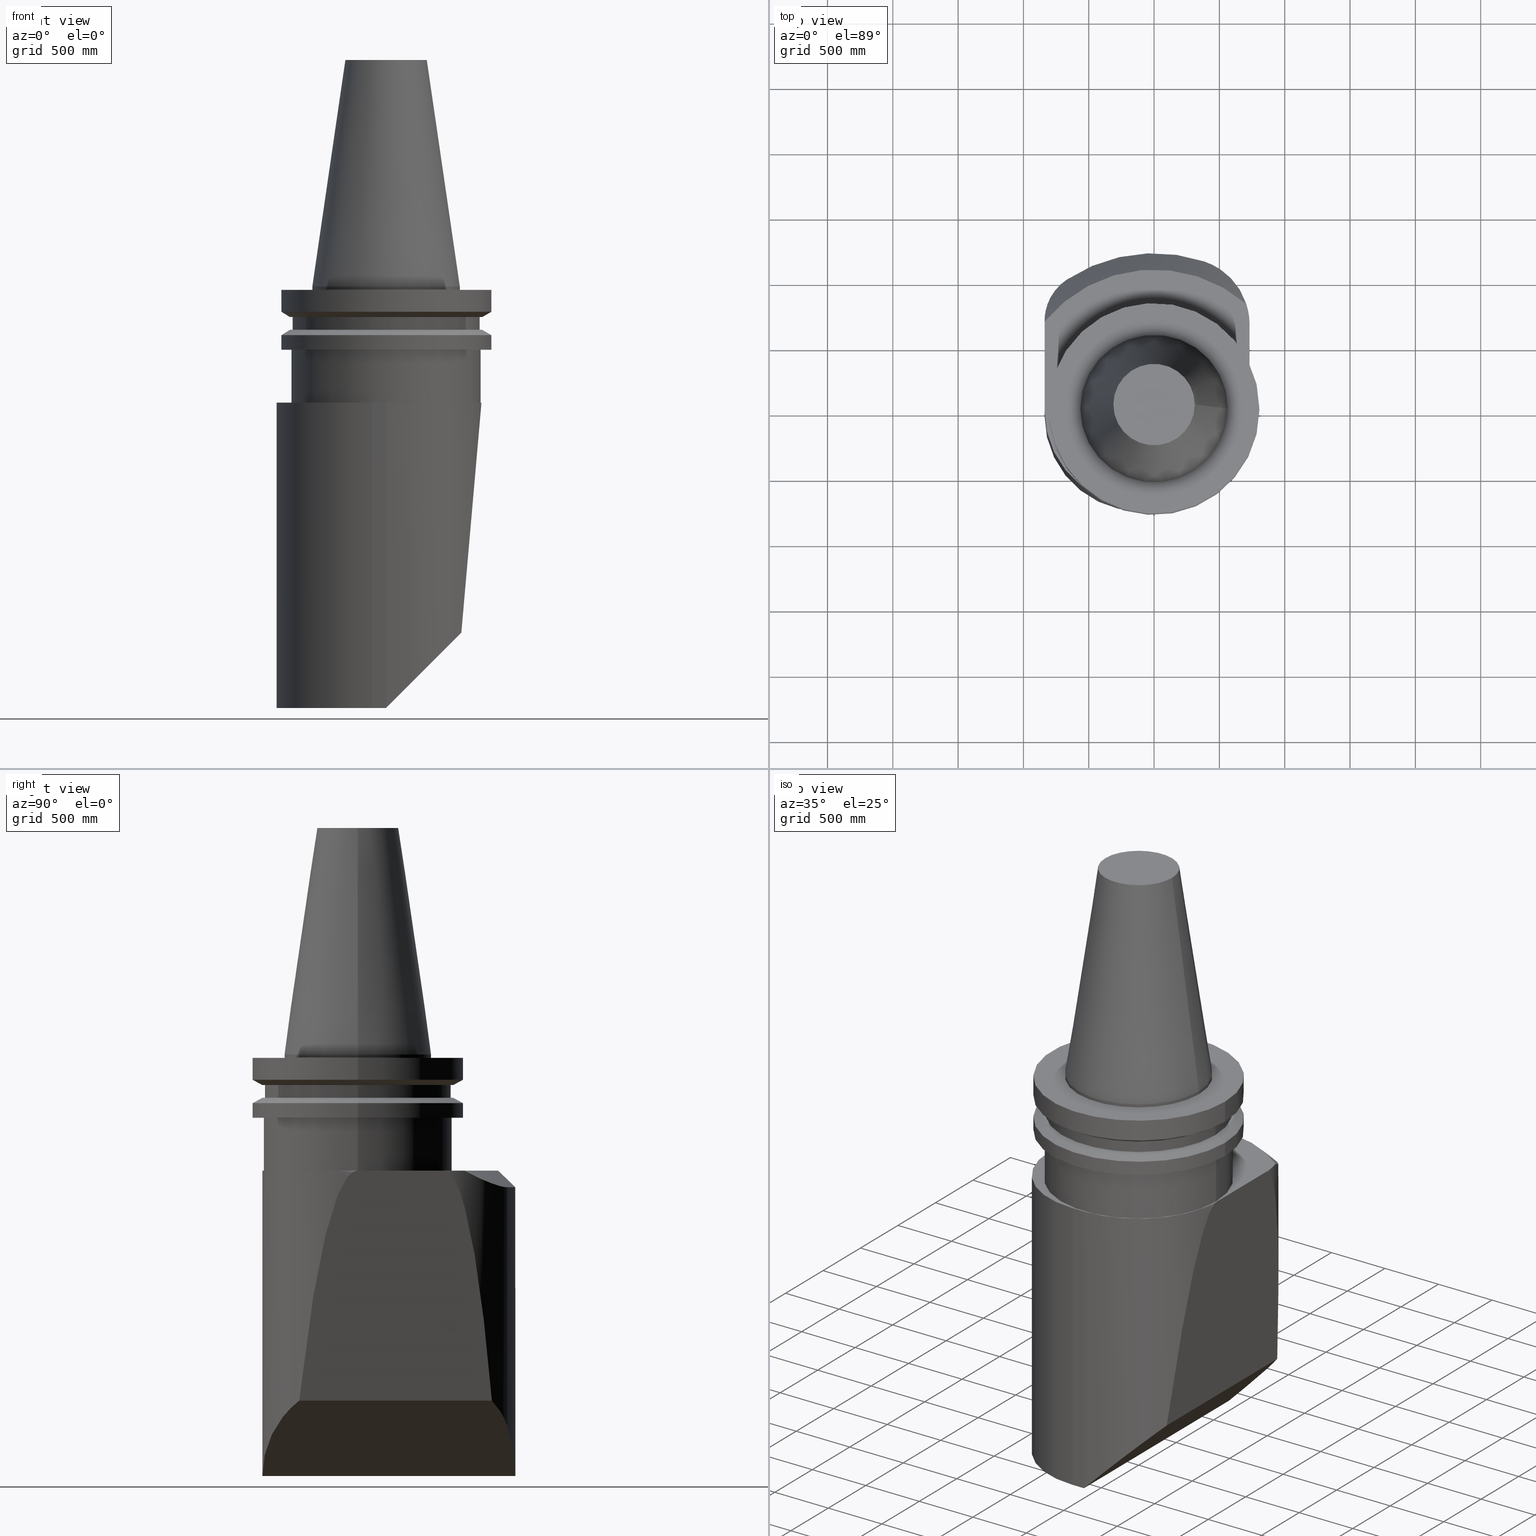
[diagram: canonical four-view strip — front | top / right | iso, engineering-drawing reading convention]
A machine part, canonical four-view strip (front | top / right | iso — engineering-drawing reading convention). The complete STEP part file that produces these views, byte-faithful:
ISO-10303-21;
HEADER;
FILE_DESCRIPTION((''),'1');
FILE_NAME('V:/01_Dxf_Field-HP\X2\FF71FF6FFF8CFF9F5916\X0\2013/BIGKAISER\X2\FF76FF80FF9BFF78FF9E63B28F095206\X0\_BKUS_201803/BCV40Y-180-BH/BCV40Y-180-BH1.000L-5.stp','2018-03-14T05:36:40',(''),(''),'Spatial Interop R21 SP3','Kubotek KeyCreator 2011 V10.0.2 (22737)',' ');
FILE_SCHEMA(('automotive_design'));
ENDSEC;
DATA;
#1=MECHANICAL_DESIGN_GEOMETRIC_PRESENTATION_REPRESENTATION(' ',(#10,#11,#12,#13,#14,#15,#16,#17,#18,#19,#20,#21,#22,#23,#24,#25,#26,#27,#28,#29,#30,#31,#32,#33,#34,#35,#36,#37,#38,#39,#40,#41,#42,#43,#44,#45,#46,#47,#48,#49,#50,#51,#52,#53,#54,#55,#56,#57,#58,#59,#60,#61,#62,#63,#64,#65,#66,#67,#68,#69,#70,#71,#72,#73,#74,#75,#76,#77,#78,#79,#80,#81,#82,#83,#84,#85,#86,#87,#88,#89,#90,#91,#92),#6);
#2=PRODUCT_DEFINITION_CONTEXT('',#93,'design');
#3=APPLICATION_PROTOCOL_DEFINITION('INTERNATIONAL STANDARD','automotive_design',1994,#93);
#4=PRODUCT_CATEGORY_RELATIONSHIP('NONE','NONE',#94,#95);
#5=SHAPE_DEFINITION_REPRESENTATION(#96,#97);
#6= (GEOMETRIC_REPRESENTATION_CONTEXT(3)GLOBAL_UNCERTAINTY_ASSIGNED_CONTEXT((#100))GLOBAL_UNIT_ASSIGNED_CONTEXT((#102,#103,#104))REPRESENTATION_CONTEXT('NONE','WORKSPACE'));
#10=STYLED_ITEM('',(#106,#107),#108);
#11=STYLED_ITEM('',(#109),#110);
#12=STYLED_ITEM('',(#111),#112);
#13=STYLED_ITEM('',(#113,#114),#115);
#14=STYLED_ITEM('',(#116),#117);
#15=STYLED_ITEM('',(#118),#119);
#16=STYLED_ITEM('',(#120),#121);
#17=STYLED_ITEM('',(#122,#123),#124);
#18=STYLED_ITEM('',(#125),#126);
#19=STYLED_ITEM('',(#127),#128);
#20=STYLED_ITEM('',(#129),#130);
#21=STYLED_ITEM('',(#131),#132);
#22=STYLED_ITEM('',(#133,#134),#135);
#23=STYLED_ITEM('',(#136),#137);
#24=STYLED_ITEM('',(#138),#139);
#25=STYLED_ITEM('',(#140,#141),#142);
#26=STYLED_ITEM('',(#143),#144);
#27=STYLED_ITEM('',(#145,#146),#147);
#28=STYLED_ITEM('',(#148),#149);
#29=STYLED_ITEM('',(#150),#151);
#30=STYLED_ITEM('',(#152),#153);
#31=STYLED_ITEM('',(#154),#155);
#32=STYLED_ITEM('',(#156,#157),#158);
#33=STYLED_ITEM('',(#159,#160),#161);
#34=STYLED_ITEM('',(#162,#163),#164);
#35=STYLED_ITEM('',(#165),#166);
#36=STYLED_ITEM('',(#167),#168);
#37=STYLED_ITEM('',(#169,#170),#171);
#38=STYLED_ITEM('',(#172,#173),#174);
#39=STYLED_ITEM('',(#175,#176),#177);
#40=STYLED_ITEM('',(#178,#179),#180);
#41=STYLED_ITEM('',(#181,#182),#183);
#42=STYLED_ITEM('',(#184),#185);
#43=STYLED_ITEM('',(#186),#187);
#44=STYLED_ITEM('',(#188),#189);
#45=STYLED_ITEM('',(#190,#191),#192);
#46=STYLED_ITEM('',(#193),#194);
#47=STYLED_ITEM('',(#195),#196);
#48=STYLED_ITEM('',(#197),#198);
#49=STYLED_ITEM('',(#199),#200);
#50=STYLED_ITEM('',(#201,#202),#203);
#51=STYLED_ITEM('',(#204),#205);
#52=STYLED_ITEM('',(#206,#207),#208);
#53=STYLED_ITEM('',(#209),#210);
#54=STYLED_ITEM('',(#211),#212);
#55=STYLED_ITEM('',(#213),#214);
#56=STYLED_ITEM('',(#215),#216);
#57=STYLED_ITEM('',(#217),#218);
#58=STYLED_ITEM('',(#219,#220),#221);
#59=STYLED_ITEM('',(#222,#223),#224);
#60=STYLED_ITEM('',(#225,#226),#227);
#61=STYLED_ITEM('',(#228),#229);
#62=STYLED_ITEM('',(#230),#231);
#63=STYLED_ITEM('',(#232,#233),#234);
#64=STYLED_ITEM('',(#235),#236);
#65=STYLED_ITEM('',(#237,#238),#239);
#66=STYLED_ITEM('',(#240,#241),#242);
#67=STYLED_ITEM('',(#243),#244);
#68=STYLED_ITEM('',(#245),#246);
#69=STYLED_ITEM('',(#247),#248);
#70=STYLED_ITEM('',(#249,#250),#251);
#71=STYLED_ITEM('',(#252,#253),#254);
#72=STYLED_ITEM('',(#255,#256),#257);
#73=STYLED_ITEM('',(#258),#259);
#74=STYLED_ITEM('',(#260),#261);
#75=STYLED_ITEM('',(#262),#263);
#76=STYLED_ITEM('',(#264),#265);
#77=STYLED_ITEM('',(#266),#267);
#78=STYLED_ITEM('',(#268),#269);
#79=STYLED_ITEM('',(#270),#271);
#80=STYLED_ITEM('',(#272),#273);
#81=STYLED_ITEM('',(#274),#275);
#82=STYLED_ITEM('',(#276),#277);
#83=STYLED_ITEM('',(#278),#279);
#84=STYLED_ITEM('',(#280),#281);
#85=STYLED_ITEM('',(#282),#283);
#86=STYLED_ITEM('',(#284),#285);
#87=STYLED_ITEM('',(#286,#287),#288);
#88=STYLED_ITEM('',(#289,#290),#291);
#89=STYLED_ITEM('',(#292),#293);
#90=STYLED_ITEM('',(#294),#295);
#91=STYLED_ITEM('',(#296,#297),#298);
#92=STYLED_ITEM('',(#299,#300),#301);
#93=APPLICATION_CONTEXT(' ');
#94=PRODUCT_CATEGORY('part','NONE');
#95=PRODUCT_RELATED_PRODUCT_CATEGORY('detail',' ',(#302));
#96=PRODUCT_DEFINITION_SHAPE('NONE','NONE',#303);
#97=ADVANCED_BREP_SHAPE_REPRESENTATION('Unnamed[1]',(#221,#304),#6);
#100=UNCERTAINTY_MEASURE_WITH_UNIT(LENGTH_MEASURE(1.0E-006),#102,'','');
#102= (CONVERSION_BASED_UNIT('INCH',#307)LENGTH_UNIT()NAMED_UNIT(#310));
#103= (NAMED_UNIT(#312)PLANE_ANGLE_UNIT()SI_UNIT($,.RADIAN.));
#104= (NAMED_UNIT(#312)SOLID_ANGLE_UNIT()SI_UNIT($,.STERADIAN.));
#106=PRESENTATION_STYLE_ASSIGNMENT((#318));
#107=PRESENTATION_STYLE_ASSIGNMENT((#319));
#108=ADVANCED_FACE('Unnamed[1]',(#320,#321),#322,.T.);
#109=PRESENTATION_STYLE_ASSIGNMENT((#323));
#110=EDGE_CURVE('Unnamed[1]',#324,#325,#326,.T.);
#111=PRESENTATION_STYLE_ASSIGNMENT((#327));
#112=EDGE_CURVE('Unnamed[1]',#328,#329,#330,.T.);
#113=PRESENTATION_STYLE_ASSIGNMENT((#331));
#114=PRESENTATION_STYLE_ASSIGNMENT((#332));
#115=ADVANCED_FACE('Unnamed[1]',(#333,#334),#335,.T.);
#116=PRESENTATION_STYLE_ASSIGNMENT((#336));
#117=EDGE_CURVE('Unnamed[1]',#337,#338,#339,.T.);
#118=PRESENTATION_STYLE_ASSIGNMENT((#340));
#119=EDGE_CURVE('Unnamed[1]',#341,#329,#342,.T.);
#120=PRESENTATION_STYLE_ASSIGNMENT((#343));
#121=EDGE_CURVE('Unnamed[1]',#344,#344,#345,.T.);
#122=PRESENTATION_STYLE_ASSIGNMENT((#346));
#123=PRESENTATION_STYLE_ASSIGNMENT((#347));
#124=ADVANCED_FACE('Unnamed[1]',(#348),#349,.F.);
#125=PRESENTATION_STYLE_ASSIGNMENT((#350));
#126=EDGE_CURVE('Unnamed[1]',#351,#351,#352,.T.);
#127=PRESENTATION_STYLE_ASSIGNMENT((#353));
#128=EDGE_CURVE('Unnamed[1]',#354,#328,#355,.T.);
#129=PRESENTATION_STYLE_ASSIGNMENT((#356));
#130=EDGE_CURVE('Unnamed[1]',#357,#358,#359,.T.);
#131=PRESENTATION_STYLE_ASSIGNMENT((#360));
#132=EDGE_CURVE('Unnamed[1]',#357,#361,#362,.T.);
#133=PRESENTATION_STYLE_ASSIGNMENT((#363));
#134=PRESENTATION_STYLE_ASSIGNMENT((#364));
#135=ADVANCED_FACE('Unnamed[1]',(#365),#366,.F.);
#136=PRESENTATION_STYLE_ASSIGNMENT((#367));
#137=EDGE_CURVE('Unnamed[1]',#368,#369,#370,.T.);
#138=PRESENTATION_STYLE_ASSIGNMENT((#371));
#139=EDGE_CURVE('Unnamed[1]',#372,#373,#374,.T.);
#140=PRESENTATION_STYLE_ASSIGNMENT((#375));
#141=PRESENTATION_STYLE_ASSIGNMENT((#376));
#142=ADVANCED_FACE('Unnamed[1]',(#377),#378,.T.);
#143=PRESENTATION_STYLE_ASSIGNMENT((#379));
#144=EDGE_CURVE('Unnamed[1]',#361,#380,#381,.T.);
#145=PRESENTATION_STYLE_ASSIGNMENT((#382));
#146=PRESENTATION_STYLE_ASSIGNMENT((#383));
#147=ADVANCED_FACE('Unnamed[1]',(#384,#385),#386,.T.);
#148=PRESENTATION_STYLE_ASSIGNMENT((#387));
#149=EDGE_CURVE('Unnamed[1]',#388,#328,#389,.T.);
#150=PRESENTATION_STYLE_ASSIGNMENT((#390));
#151=EDGE_CURVE('Unnamed[1]',#380,#372,#391,.T.);
#152=PRESENTATION_STYLE_ASSIGNMENT((#392));
#153=EDGE_CURVE('Unnamed[1]',#354,#393,#394,.T.);
#154=PRESENTATION_STYLE_ASSIGNMENT((#395));
#155=EDGE_CURVE('Unnamed[1]',#325,#369,#396,.T.);
#156=PRESENTATION_STYLE_ASSIGNMENT((#397));
#157=PRESENTATION_STYLE_ASSIGNMENT((#398));
#158=ADVANCED_FACE('Unnamed[1]',(#399),#400,.T.);
#159=PRESENTATION_STYLE_ASSIGNMENT((#401));
#160=PRESENTATION_STYLE_ASSIGNMENT((#402));
#161=ADVANCED_FACE('Unnamed[1]',(#403),#404,.F.);
#162=PRESENTATION_STYLE_ASSIGNMENT((#405));
#163=PRESENTATION_STYLE_ASSIGNMENT((#406));
#164=ADVANCED_FACE('Unnamed[1]',(#407),#408,.F.);
#165=PRESENTATION_STYLE_ASSIGNMENT((#409));
#166=EDGE_CURVE('Unnamed[1]',#361,#410,#411,.T.);
#167=PRESENTATION_STYLE_ASSIGNMENT((#412));
#168=EDGE_CURVE('Unnamed[1]',#373,#354,#413,.T.);
#169=PRESENTATION_STYLE_ASSIGNMENT((#414));
#170=PRESENTATION_STYLE_ASSIGNMENT((#415));
#171=ADVANCED_FACE('Unnamed[1]',(#416),#417,.T.);
#172=PRESENTATION_STYLE_ASSIGNMENT((#418));
#173=PRESENTATION_STYLE_ASSIGNMENT((#419));
#174=ADVANCED_FACE('Unnamed[1]',(#420,#421),#422,.T.);
#175=PRESENTATION_STYLE_ASSIGNMENT((#423));
#176=PRESENTATION_STYLE_ASSIGNMENT((#424));
#177=ADVANCED_FACE('Unnamed[1]',(#425),#426,.F.);
#178=PRESENTATION_STYLE_ASSIGNMENT((#427));
#179=PRESENTATION_STYLE_ASSIGNMENT((#428));
#180=ADVANCED_FACE('Unnamed[1]',(#429,#430),#431,.T.);
#181=PRESENTATION_STYLE_ASSIGNMENT((#432));
#182=PRESENTATION_STYLE_ASSIGNMENT((#433));
#183=ADVANCED_FACE('Unnamed[1]',(#434),#435,.T.);
#184=PRESENTATION_STYLE_ASSIGNMENT((#436));
#185=EDGE_CURVE('Unnamed[1]',#324,#437,#438,.T.);
#186=PRESENTATION_STYLE_ASSIGNMENT((#439));
#187=EDGE_CURVE('Unnamed[1]',#440,#440,#441,.T.);
#188=PRESENTATION_STYLE_ASSIGNMENT((#442));
#189=EDGE_CURVE('Unnamed[1]',#443,#443,#444,.T.);
#190=PRESENTATION_STYLE_ASSIGNMENT((#445));
#191=PRESENTATION_STYLE_ASSIGNMENT((#446));
#192=ADVANCED_FACE('Unnamed[1]',(#447,#448),#449,.T.);
#193=PRESENTATION_STYLE_ASSIGNMENT((#450));
#194=EDGE_CURVE('Unnamed[1]',#451,#337,#452,.T.);
#195=PRESENTATION_STYLE_ASSIGNMENT((#453));
#196=EDGE_CURVE('Unnamed[1]',#338,#454,#455,.T.);
#197=PRESENTATION_STYLE_ASSIGNMENT((#456));
#198=EDGE_CURVE('Unnamed[1]',#457,#457,#458,.T.);
#199=PRESENTATION_STYLE_ASSIGNMENT((#459));
#200=EDGE_CURVE('Unnamed[1]',#460,#380,#461,.T.);
#201=PRESENTATION_STYLE_ASSIGNMENT((#462));
#202=PRESENTATION_STYLE_ASSIGNMENT((#463));
#203=ADVANCED_FACE('Unnamed[1]',(#464),#465,.F.);
#204=PRESENTATION_STYLE_ASSIGNMENT((#466));
#205=EDGE_CURVE('Unnamed[1]',#393,#341,#467,.T.);
#206=PRESENTATION_STYLE_ASSIGNMENT((#468));
#207=PRESENTATION_STYLE_ASSIGNMENT((#469));
#208=ADVANCED_FACE('Unnamed[1]',(#470,#471),#472,.T.);
#209=PRESENTATION_STYLE_ASSIGNMENT((#473));
#210=EDGE_CURVE('Unnamed[1]',#368,#329,#474,.T.);
#211=PRESENTATION_STYLE_ASSIGNMENT((#475));
#212=EDGE_CURVE('Unnamed[1]',#476,#477,#478,.T.);
#213=PRESENTATION_STYLE_ASSIGNMENT((#479));
#214=EDGE_CURVE('Unnamed[1]',#480,#480,#481,.T.);
#215=PRESENTATION_STYLE_ASSIGNMENT((#482));
#216=EDGE_CURVE('Unnamed[1]',#410,#483,#484,.T.);
#217=PRESENTATION_STYLE_ASSIGNMENT((#485));
#218=EDGE_CURVE('Unnamed[1]',#483,#338,#486,.T.);
#219=PRESENTATION_STYLE_ASSIGNMENT((#487));
#220=PRESENTATION_STYLE_ASSIGNMENT((#488));
#221=MANIFOLD_SOLID_BREP('Unnamed[1]',#489);
#222=PRESENTATION_STYLE_ASSIGNMENT((#490));
#223=PRESENTATION_STYLE_ASSIGNMENT((#491));
#224=ADVANCED_FACE('Unnamed[1]',(#492,#493),#494,.T.);
#225=PRESENTATION_STYLE_ASSIGNMENT((#495));
#226=PRESENTATION_STYLE_ASSIGNMENT((#496));
#227=ADVANCED_FACE('Unnamed[1]',(#497),#498,.T.);
#228=PRESENTATION_STYLE_ASSIGNMENT((#499));
#229=EDGE_CURVE('Unnamed[1]',#341,#477,#500,.T.);
#230=PRESENTATION_STYLE_ASSIGNMENT((#501));
#231=EDGE_CURVE('Unnamed[1]',#476,#368,#502,.T.);
#232=PRESENTATION_STYLE_ASSIGNMENT((#503));
#233=PRESENTATION_STYLE_ASSIGNMENT((#504));
#234=ADVANCED_FACE('Unnamed[1]',(#505),#506,.T.);
#235=PRESENTATION_STYLE_ASSIGNMENT((#507));
#236=EDGE_CURVE('Unnamed[1]',#508,#508,#509,.T.);
#237=PRESENTATION_STYLE_ASSIGNMENT((#510));
#238=PRESENTATION_STYLE_ASSIGNMENT((#511));
#239=ADVANCED_FACE('Unnamed[1]',(#512),#513,.F.);
#240=PRESENTATION_STYLE_ASSIGNMENT((#514));
#241=PRESENTATION_STYLE_ASSIGNMENT((#515));
#242=ADVANCED_FACE('Unnamed[1]',(#516,#517),#518,.T.);
#243=PRESENTATION_STYLE_ASSIGNMENT((#519));
#244=EDGE_CURVE('Unnamed[1]',#369,#388,#520,.T.);
#245=PRESENTATION_STYLE_ASSIGNMENT((#521));
#246=EDGE_CURVE('Unnamed[1]',#522,#522,#523,.T.);
#247=PRESENTATION_STYLE_ASSIGNMENT((#524));
#248=EDGE_CURVE('Unnamed[1]',#525,#525,#526,.T.);
#249=PRESENTATION_STYLE_ASSIGNMENT((#527));
#250=PRESENTATION_STYLE_ASSIGNMENT((#528));
#251=ADVANCED_FACE('Unnamed[1]',(#529),#530,.T.);
#252=PRESENTATION_STYLE_ASSIGNMENT((#531));
#253=PRESENTATION_STYLE_ASSIGNMENT((#532));
#254=ADVANCED_FACE('Unnamed[1]',(#533,#534),#535,.T.);
#255=PRESENTATION_STYLE_ASSIGNMENT((#536));
#256=PRESENTATION_STYLE_ASSIGNMENT((#537));
#257=ADVANCED_FACE('Unnamed[1]',(#538,#539),#540,.T.);
#258=PRESENTATION_STYLE_ASSIGNMENT((#541));
#259=EDGE_CURVE('Unnamed[1]',#410,#454,#542,.T.);
#260=PRESENTATION_STYLE_ASSIGNMENT((#543));
#261=EDGE_CURVE('Unnamed[1]',#477,#357,#544,.T.);
#262=PRESENTATION_STYLE_ASSIGNMENT((#545));
#263=EDGE_CURVE('Unnamed[1]',#454,#460,#546,.T.);
#264=PRESENTATION_STYLE_ASSIGNMENT((#547));
#265=EDGE_CURVE('Unnamed[1]',#325,#476,#548,.T.);
#266=PRESENTATION_STYLE_ASSIGNMENT((#549));
#267=EDGE_CURVE('Unnamed[1]',#483,#451,#550,.T.);
#268=PRESENTATION_STYLE_ASSIGNMENT((#551));
#269=EDGE_CURVE('Unnamed[1]',#552,#552,#553,.T.);
#270=PRESENTATION_STYLE_ASSIGNMENT((#554));
#271=EDGE_CURVE('Unnamed[1]',#388,#460,#555,.T.);
#272=PRESENTATION_STYLE_ASSIGNMENT((#556));
#273=EDGE_CURVE('Unnamed[1]',#437,#454,#557,.T.);
#274=PRESENTATION_STYLE_ASSIGNMENT((#558));
#275=EDGE_CURVE('Unnamed[1]',#357,#372,#559,.T.);
#276=PRESENTATION_STYLE_ASSIGNMENT((#560));
#277=EDGE_CURVE('Unnamed[1]',#561,#561,#562,.T.);
#278=PRESENTATION_STYLE_ASSIGNMENT((#563));
#279=EDGE_CURVE('Unnamed[1]',#564,#564,#565,.T.);
#280=PRESENTATION_STYLE_ASSIGNMENT((#566));
#281=EDGE_CURVE('Unnamed[1]',#451,#324,#567,.T.);
#282=PRESENTATION_STYLE_ASSIGNMENT((#568));
#283=EDGE_CURVE('Unnamed[1]',#358,#373,#569,.T.);
#284=PRESENTATION_STYLE_ASSIGNMENT((#570));
#285=EDGE_CURVE('Unnamed[1]',#571,#571,#572,.T.);
#286=PRESENTATION_STYLE_ASSIGNMENT((#573));
#287=PRESENTATION_STYLE_ASSIGNMENT((#574));
#288=ADVANCED_FACE('Unnamed[1]',(#575),#576,.T.);
#289=PRESENTATION_STYLE_ASSIGNMENT((#577));
#290=PRESENTATION_STYLE_ASSIGNMENT((#578));
#291=ADVANCED_FACE('Unnamed[1]',(#579,#580),#581,.T.);
#292=PRESENTATION_STYLE_ASSIGNMENT((#582));
#293=EDGE_CURVE('Unnamed[1]',#437,#337,#583,.T.);
#294=PRESENTATION_STYLE_ASSIGNMENT((#584));
#295=EDGE_CURVE('Unnamed[1]',#393,#358,#585,.T.);
#296=PRESENTATION_STYLE_ASSIGNMENT((#586));
#297=PRESENTATION_STYLE_ASSIGNMENT((#587));
#298=ADVANCED_FACE('Unnamed[1]',(#588,#589),#590,.T.);
#299=PRESENTATION_STYLE_ASSIGNMENT((#591));
#300=PRESENTATION_STYLE_ASSIGNMENT((#592));
#301=ADVANCED_FACE('Unnamed[1]',(#593),#594,.F.);
#302=PRODUCT('Unnamed[1]','Unnamed[1]','PART-Unnamed[1]-DESC',(#595));
#303=PRODUCT_DEFINITION('NONE','NONE',#596,#2);
#304=AXIS2_PLACEMENT_3D('',#597,#598,#599);
#307=LENGTH_MEASURE_WITH_UNIT(LENGTH_MEASURE(25.4),#600);
#310=DIMENSIONAL_EXPONENTS(1.0,0.0,0.0,0.0,0.0,0.0,0.0);
#312=DIMENSIONAL_EXPONENTS(0.0,0.0,0.0,0.0,0.0,0.0,0.0);
#318=SURFACE_STYLE_USAGE(.BOTH.,#601);
#319=CURVE_STYLE('',#602,POSITIVE_LENGTH_MEASURE(1000.0),#603);
#320=FACE_BOUND('',#604,.T.);
#321=FACE_BOUND('',#605,.T.);
#322=CYLINDRICAL_SURFACE('',#606,22.225);
#323=CURVE_STYLE('',#607,POSITIVE_LENGTH_MEASURE(1000.0),#608);
#324=VERTEX_POINT('',#609);
#325=VERTEX_POINT('',#610);
#326=LINE('',#611,#612);
#327=CURVE_STYLE('',#613,POSITIVE_LENGTH_MEASURE(1000.0),#614);
#328=VERTEX_POINT('',#615);
#329=VERTEX_POINT('',#616);
#330=B_SPLINE_CURVE_WITH_KNOTS('',3,(#617,#618,#619,#620,#621,#622,#623,#624,#625,#626,#627,#628,#629,#630,#631,#632,#633,#634,#635,#636),.UNSPECIFIED.,.F.,.F.,(4,2,2,2,2,2,2,2,2,4),(0.0,2.73601369672958,5.47202739345916,8.20804109018874,10.9440547869183,13.3538272272021,15.7635996674858,18.1733721077696,20.5831445480533,22.9929169883371),.UNSPECIFIED.);
#331=SURFACE_STYLE_USAGE(.BOTH.,#637);
#332=CURVE_STYLE('',#638,POSITIVE_LENGTH_MEASURE(1000.0),#639);
#333=FACE_BOUND('',#640,.T.);
#334=FACE_BOUND('',#641,.T.);
#335=CONICAL_SURFACE('',#642,17.2484375007384,0.144812498217751);
#336=CURVE_STYLE('',#643,POSITIVE_LENGTH_MEASURE(1000.0),#644);
#337=VERTEX_POINT('',#645);
#338=VERTEX_POINT('',#646);
#339=LINE('',#647,#648);
#340=CURVE_STYLE('',#649,POSITIVE_LENGTH_MEASURE(1000.0),#650);
#341=VERTEX_POINT('',#651);
#342=LINE('',#652,#653);
#343=CURVE_STYLE('',#654,POSITIVE_LENGTH_MEASURE(1000.0),#655);
#344=VERTEX_POINT('',#656);
#345=CIRCLE('',#657,28.5000000000001);
#346=SURFACE_STYLE_USAGE(.BOTH.,#658);
#347=CURVE_STYLE('',#659,POSITIVE_LENGTH_MEASURE(1000.0),#660);
#348=FACE_OUTER_BOUND('',#661,.T.);
#349=PLANE('',#662);
#350=CURVE_STYLE('',#663,POSITIVE_LENGTH_MEASURE(1000.0),#664);
#351=VERTEX_POINT('',#665);
#352=CIRCLE('',#666,12.2718750014769);
#353=CURVE_STYLE('',#667,POSITIVE_LENGTH_MEASURE(1000.0),#668);
#354=VERTEX_POINT('',#669);
#355=CIRCLE('',#670,20.0);
#356=CURVE_STYLE('',#671,POSITIVE_LENGTH_MEASURE(1000.0),#672);
#357=VERTEX_POINT('',#673);
#358=VERTEX_POINT('',#674);
#359=ELLIPSE('',#675,40.6586399182262,28.75);
#360=CURVE_STYLE('',#676,POSITIVE_LENGTH_MEASURE(1000.0),#677);
#361=VERTEX_POINT('',#678);
#362=LINE('',#679,#680);
#363=SURFACE_STYLE_USAGE(.BOTH.,#681);
#364=CURVE_STYLE('',#682,POSITIVE_LENGTH_MEASURE(1000.0),#683);
#365=FACE_OUTER_BOUND('',#684,.T.);
#366=PLANE('',#685);
#367=CURVE_STYLE('',#686,POSITIVE_LENGTH_MEASURE(1000.0),#687);
#368=VERTEX_POINT('',#688);
#369=VERTEX_POINT('',#689);
#370=B_SPLINE_CURVE_WITH_KNOTS('',3,(#690,#691,#692,#693,#694,#695,#696,#697,#698,#699,#700,#701,#702,#703,#704,#705,#706,#707,#708,#709),.UNSPECIFIED.,.F.,.F.,(4,2,2,2,2,2,2,2,2,4),(15.0413319300748,16.9656011800084,18.8898704299421,20.8141396798757,22.7384089298094,24.662678179743,26.9798092248115,29.2969402698799,31.6140713149484,33.9312023600168),.UNSPECIFIED.);
#371=CURVE_STYLE('',#710,POSITIVE_LENGTH_MEASURE(1000.0),#711);
#372=VERTEX_POINT('',#712);
#373=VERTEX_POINT('',#713);
#374=CIRCLE('',#714,28.75);
#375=SURFACE_STYLE_USAGE(.BOTH.,#715);
#376=CURVE_STYLE('',#716,POSITIVE_LENGTH_MEASURE(1000.0),#717);
#377=FACE_OUTER_BOUND('',#718,.T.);
#378=CYLINDRICAL_SURFACE('',#719,20.0);
#379=CURVE_STYLE('',#720,POSITIVE_LENGTH_MEASURE(1000.0),#721);
#380=VERTEX_POINT('',#722);
#381=LINE('',#723,#724);
#382=SURFACE_STYLE_USAGE(.BOTH.,#725);
#383=CURVE_STYLE('',#726,POSITIVE_LENGTH_MEASURE(1000.0),#727);
#384=FACE_OUTER_BOUND('',#728,.T.);
#385=FACE_BOUND('',#729,.T.);
#386=PLANE('',#730);
#387=CURVE_STYLE('',#731,POSITIVE_LENGTH_MEASURE(1000.0),#732);
#388=VERTEX_POINT('',#733);
#389=CIRCLE('',#734,42.4999999999998);
#390=CURVE_STYLE('',#735,POSITIVE_LENGTH_MEASURE(1000.0),#736);
#391=LINE('',#737,#738);
#392=CURVE_STYLE('',#739,POSITIVE_LENGTH_MEASURE(1000.0),#740);
#393=VERTEX_POINT('',#741);
#394=ELLIPSE('',#742,229.474264913312,20.0);
#395=CURVE_STYLE('',#743,POSITIVE_LENGTH_MEASURE(1000.0),#744);
#396=LINE('',#745,#746);
#397=SURFACE_STYLE_USAGE(.BOTH.,#747);
#398=CURVE_STYLE('',#748,POSITIVE_LENGTH_MEASURE(1000.0),#749);
#399=FACE_OUTER_BOUND('',#750,.T.);
#400=PLANE('',#751);
#401=SURFACE_STYLE_USAGE(.BOTH.,#752);
#402=CURVE_STYLE('',#753,POSITIVE_LENGTH_MEASURE(1000.0),#754);
#403=FACE_OUTER_BOUND('',#755,.T.);
#404=PLANE('',#756);
#405=SURFACE_STYLE_USAGE(.BOTH.,#757);
#406=CURVE_STYLE('',#758,POSITIVE_LENGTH_MEASURE(1000.0),#759);
#407=FACE_OUTER_BOUND('',#760,.T.);
#408=PLANE('',#761);
#409=CURVE_STYLE('',#762,POSITIVE_LENGTH_MEASURE(1000.0),#763);
#410=VERTEX_POINT('',#764);
#411=CIRCLE('',#765,28.75);
#412=CURVE_STYLE('',#766,POSITIVE_LENGTH_MEASURE(1000.0),#767);
#413=LINE('',#768,#769);
#414=SURFACE_STYLE_USAGE(.BOTH.,#770);
#415=CURVE_STYLE('',#771,POSITIVE_LENGTH_MEASURE(1000.0),#772);
#416=FACE_OUTER_BOUND('',#773,.T.);
#417=CONICAL_SURFACE('',#774,44.9999999999999,0.785398163397465);
#418=SURFACE_STYLE_USAGE(.BOTH.,#775);
#419=CURVE_STYLE('',#776,POSITIVE_LENGTH_MEASURE(1000.0),#777);
#420=FACE_BOUND('',#778,.T.);
#421=FACE_BOUND('',#779,.T.);
#422=CYLINDRICAL_SURFACE('',#780,31.75);
#423=SURFACE_STYLE_USAGE(.BOTH.,#781);
#424=CURVE_STYLE('',#782,POSITIVE_LENGTH_MEASURE(1000.0),#783);
#425=FACE_OUTER_BOUND('',#784,.T.);
#426=PLANE('',#785);
#427=SURFACE_STYLE_USAGE(.BOTH.,#786);
#428=CURVE_STYLE('',#787,POSITIVE_LENGTH_MEASURE(1000.0),#788);
#429=FACE_OUTER_BOUND('',#789,.T.);
#430=FACE_BOUND('',#790,.T.);
#431=PLANE('',#791);
#432=SURFACE_STYLE_USAGE(.BOTH.,#792);
#433=CURVE_STYLE('',#793,POSITIVE_LENGTH_MEASURE(1000.0),#794);
#434=FACE_OUTER_BOUND('',#795,.T.);
#435=CYLINDRICAL_SURFACE('',#796,28.75);
#436=CURVE_STYLE('',#797,POSITIVE_LENGTH_MEASURE(1000.0),#798);
#437=VERTEX_POINT('',#799);
#438=LINE('',#800,#801);
#439=CURVE_STYLE('',#802,POSITIVE_LENGTH_MEASURE(1000.0),#803);
#440=VERTEX_POINT('',#804);
#441=CIRCLE('',#805,31.75);
#442=CURVE_STYLE('',#806,POSITIVE_LENGTH_MEASURE(1000.0),#807);
#443=VERTEX_POINT('',#808);
#444=CIRCLE('',#809,28.95591319);
#445=SURFACE_STYLE_USAGE(.BOTH.,#810);
#446=CURVE_STYLE('',#811,POSITIVE_LENGTH_MEASURE(1000.0),#812);
#447=FACE_BOUND('',#813,.T.);
#448=FACE_BOUND('',#814,.T.);
#449=CYLINDRICAL_SURFACE('',#815,31.75);
#450=CURVE_STYLE('',#816,POSITIVE_LENGTH_MEASURE(1000.0),#817);
#451=VERTEX_POINT('',#818);
#452=LINE('',#819,#820);
#453=CURVE_STYLE('',#821,POSITIVE_LENGTH_MEASURE(1000.0),#822);
#454=VERTEX_POINT('',#823);
#455=LINE('',#824,#825);
#456=CURVE_STYLE('',#826,POSITIVE_LENGTH_MEASURE(1000.0),#827);
#457=VERTEX_POINT('',#828);
#458=CIRCLE('',#829,22.225);
#459=CURVE_STYLE('',#830,POSITIVE_LENGTH_MEASURE(1000.0),#831);
#460=VERTEX_POINT('',#832);
#461=CIRCLE('',#833,28.75);
#462=SURFACE_STYLE_USAGE(.BOTH.,#834);
#463=CURVE_STYLE('',#835,POSITIVE_LENGTH_MEASURE(1000.0),#836);
#464=FACE_OUTER_BOUND('',#837,.T.);
#465=PLANE('',#838);
#466=CURVE_STYLE('',#839,POSITIVE_LENGTH_MEASURE(1000.0),#840);
#467=ELLIPSE('',#841,28.2842712474617,20.0);
#468=SURFACE_STYLE_USAGE(.BOTH.,#842);
#469=CURVE_STYLE('',#843,POSITIVE_LENGTH_MEASURE(1000.0),#844);
#470=FACE_BOUND('',#845,.T.);
#471=FACE_BOUND('',#846,.T.);
#472=CONICAL_SURFACE('',#847,30.365080955,1.04719755034994);
#473=CURVE_STYLE('',#848,POSITIVE_LENGTH_MEASURE(1000.0),#849);
#474=CIRCLE('',#850,47.5);
#475=CURVE_STYLE('',#851,POSITIVE_LENGTH_MEASURE(1000.0),#852);
#476=VERTEX_POINT('',#853);
#477=VERTEX_POINT('',#854);
#478=CIRCLE('',#855,47.5);
#479=CURVE_STYLE('',#856,POSITIVE_LENGTH_MEASURE(1000.0),#857);
#480=VERTEX_POINT('',#858);
#481=CIRCLE('',#859,28.98016191);
#482=CURVE_STYLE('',#860,POSITIVE_LENGTH_MEASURE(1000.0),#861);
#483=VERTEX_POINT('',#862);
#484=LINE('',#863,#864);
#485=CURVE_STYLE('',#865,POSITIVE_LENGTH_MEASURE(1000.0),#866);
#486=LINE('',#867,#868);
#487=SURFACE_STYLE_USAGE(.BOTH.,#869);
#488=CURVE_STYLE('',#870,POSITIVE_LENGTH_MEASURE(1000.0),#871);
#489=CLOSED_SHELL('',(#124,#239,#161,#164,#158,#301,#135,#288,#203,#251,#183,#177,#142,#171,#291,#234,#115,#108,#147,#174,#208,#298,#254,#257,#224,#192,#242,#180,#227));
#490=SURFACE_STYLE_USAGE(.BOTH.,#872);
#491=CURVE_STYLE('',#873,POSITIVE_LENGTH_MEASURE(1000.0),#874);
#492=FACE_BOUND('',#875,.T.);
#493=FACE_BOUND('',#876,.T.);
#494=CONICAL_SURFACE('',#877,30.352956595,1.04719755170464);
#495=SURFACE_STYLE_USAGE(.BOTH.,#878);
#496=CURVE_STYLE('',#879,POSITIVE_LENGTH_MEASURE(1000.0),#880);
#497=FACE_OUTER_BOUND('',#881,.T.);
#498=CYLINDRICAL_SURFACE('',#882,47.5);
#499=CURVE_STYLE('',#883,POSITIVE_LENGTH_MEASURE(1000.0),#884);
#500=ELLIPSE('',#885,67.1751442127216,47.5);
#501=CURVE_STYLE('',#886,POSITIVE_LENGTH_MEASURE(1000.0),#887);
#502=LINE('',#888,#889);
#503=SURFACE_STYLE_USAGE(.BOTH.,#890);
#504=CURVE_STYLE('',#891,POSITIVE_LENGTH_MEASURE(1000.0),#892);
#505=FACE_OUTER_BOUND('',#893,.T.);
#506=PLANE('',#894);
#507=CURVE_STYLE('',#895,POSITIVE_LENGTH_MEASURE(1000.0),#896);
#508=VERTEX_POINT('',#897);
#509=CIRCLE('',#898,22.225);
#510=SURFACE_STYLE_USAGE(.BOTH.,#899);
#511=CURVE_STYLE('',#900,POSITIVE_LENGTH_MEASURE(1000.0),#901);
#512=FACE_OUTER_BOUND('',#902,.T.);
#513=PLANE('',#903);
#514=SURFACE_STYLE_USAGE(.BOTH.,#904);
#515=CURVE_STYLE('',#905,POSITIVE_LENGTH_MEASURE(1000.0),#906);
#516=FACE_BOUND('',#907,.T.);
#517=FACE_BOUND('',#908,.T.);
#518=CYLINDRICAL_SURFACE('',#909,28.5);
#519=CURVE_STYLE('',#910,POSITIVE_LENGTH_MEASURE(1000.0),#911);
#520=(B_SPLINE_CURVE(2,(#913,#914,#915),.UNSPECIFIED.,.F.,.F.)B_SPLINE_CURVE_WITH_KNOTS((3,3),(0.0,8.91823131307148),.UNSPECIFIED.)RATIONAL_B_SPLINE_CURVE((1.0,1.00338228800787,1.0))BOUNDED_CURVE()REPRESENTATION_ITEM('')GEOMETRIC_REPRESENTATION_ITEM()CURVE());
#521=CURVE_STYLE('',#922,POSITIVE_LENGTH_MEASURE(1000.0),#923);
#522=VERTEX_POINT('',#924);
#523=CIRCLE('',#925,28.18);
#524=CURVE_STYLE('',#926,POSITIVE_LENGTH_MEASURE(1000.0),#927);
#525=VERTEX_POINT('',#928);
#526=CIRCLE('',#929,31.75);
#527=SURFACE_STYLE_USAGE(.BOTH.,#930);
#528=CURVE_STYLE('',#931,POSITIVE_LENGTH_MEASURE(1000.0),#932);
#529=FACE_OUTER_BOUND('',#933,.T.);
#530=CYLINDRICAL_SURFACE('',#934,15.0);
#531=SURFACE_STYLE_USAGE(.BOTH.,#935);
#532=CURVE_STYLE('',#936,POSITIVE_LENGTH_MEASURE(1000.0),#937);
#533=FACE_BOUND('',#938,.T.);
#534=FACE_BOUND('',#939,.T.);
#535=CYLINDRICAL_SURFACE('',#940,28.18);
#536=SURFACE_STYLE_USAGE(.BOTH.,#941);
#537=CURVE_STYLE('',#942,POSITIVE_LENGTH_MEASURE(1000.0),#943);
#538=FACE_OUTER_BOUND('',#944,.T.);
#539=FACE_BOUND('',#945,.T.);
#540=PLANE('',#946);
#541=CURVE_STYLE('',#947,POSITIVE_LENGTH_MEASURE(1000.0),#948);
#542=LINE('',#949,#950);
#543=CURVE_STYLE('',#951,POSITIVE_LENGTH_MEASURE(1000.0),#952);
#544=LINE('',#953,#954);
#545=CURVE_STYLE('',#955,POSITIVE_LENGTH_MEASURE(1000.0),#956);
#546=LINE('',#957,#958);
#547=CURVE_STYLE('',#959,POSITIVE_LENGTH_MEASURE(1000.0),#960);
#548=CIRCLE('',#961,15.0);
#549=CURVE_STYLE('',#962,POSITIVE_LENGTH_MEASURE(1000.0),#963);
#550=LINE('',#964,#965);
#551=CURVE_STYLE('',#966,POSITIVE_LENGTH_MEASURE(1000.0),#967);
#552=VERTEX_POINT('',#968);
#553=CIRCLE('',#969,28.18);
#554=CURVE_STYLE('',#970,POSITIVE_LENGTH_MEASURE(1000.0),#971);
#555=LINE('',#972,#973);
#556=CURVE_STYLE('',#974,POSITIVE_LENGTH_MEASURE(1000.0),#975);
#557=LINE('',#976,#977);
#558=CURVE_STYLE('',#978,POSITIVE_LENGTH_MEASURE(1000.0),#979);
#559=LINE('',#980,#981);
#560=CURVE_STYLE('',#982,POSITIVE_LENGTH_MEASURE(1000.0),#983);
#561=VERTEX_POINT('',#984);
#562=CIRCLE('',#985,31.75);
#563=CURVE_STYLE('',#986,POSITIVE_LENGTH_MEASURE(1000.0),#987);
#564=VERTEX_POINT('',#988);
#565=CIRCLE('',#989,31.75);
#566=CURVE_STYLE('',#990,POSITIVE_LENGTH_MEASURE(1000.0),#991);
#567=LINE('',#992,#993);
#568=CURVE_STYLE('',#994,POSITIVE_LENGTH_MEASURE(1000.0),#995);
#569=ELLIPSE('',#996,329.869255812886,28.75);
#570=CURVE_STYLE('',#997,POSITIVE_LENGTH_MEASURE(1000.0),#998);
#571=VERTEX_POINT('',#999);
#572=CIRCLE('',#1000,28.4999999999999);
#573=SURFACE_STYLE_USAGE(.BOTH.,#1001);
#574=CURVE_STYLE('',#1002,POSITIVE_LENGTH_MEASURE(1000.0),#1003);
#575=FACE_OUTER_BOUND('',#1004,.T.);
#576=CYLINDRICAL_SURFACE('',#1005,28.75);
#577=SURFACE_STYLE_USAGE(.BOTH.,#1006);
#578=CURVE_STYLE('',#1007,POSITIVE_LENGTH_MEASURE(1000.0),#1008);
#579=FACE_OUTER_BOUND('',#1009,.T.);
#580=FACE_BOUND('',#1010,.T.);
#581=PLANE('',#1011);
#582=CURVE_STYLE('',#1012,POSITIVE_LENGTH_MEASURE(1000.0),#1013);
#583=LINE('',#1014,#1015);
#584=CURVE_STYLE('',#1016,POSITIVE_LENGTH_MEASURE(1000.0),#1017);
#585=LINE('',#1018,#1019);
#586=SURFACE_STYLE_USAGE(.BOTH.,#1020);
#587=CURVE_STYLE('',#1021,POSITIVE_LENGTH_MEASURE(1000.0),#1022);
#588=FACE_BOUND('',#1023,.T.);
#589=FACE_OUTER_BOUND('',#1024,.T.);
#590=PLANE('',#1025);
#591=SURFACE_STYLE_USAGE(.BOTH.,#1026);
#592=CURVE_STYLE('',#1027,POSITIVE_LENGTH_MEASURE(1000.0),#1028);
#593=FACE_OUTER_BOUND('',#1029,.T.);
#594=PLANE('',#1030);
#595=PRODUCT_CONTEXT('',#93,'mechanical');
#596=PRODUCT_DEFINITION_FORMATION_WITH_SPECIFIED_SOURCE(' ','NONE',#302,.NOT_KNOWN.);
#597=CARTESIAN_POINT('',(0.0,0.0,0.0));
#598=DIRECTION('',(0.0,0.0,1.0));
#599=DIRECTION('',(1.0,0.0,0.0));
#600= (NAMED_UNIT(#310)LENGTH_UNIT()SI_UNIT(.MILLI.,.METRE.));
#601=SURFACE_SIDE_STYLE('',(#1032));
#602=DRAUGHTING_PRE_DEFINED_CURVE_FONT('continuous');
#603=COLOUR_RGB('',0.0,1.0,0.0);
#604=EDGE_LOOP('',(#1033));
#605=EDGE_LOOP('',(#1034));
#606=AXIS2_PLACEMENT_3D('',#1035,#1036,#1037);
#607=DRAUGHTING_PRE_DEFINED_CURVE_FONT('continuous');
#608=COLOUR_RGB('',0.0,1.0,0.0);
#609=CARTESIAN_POINT('',(-32.9999999999993,25.4000000000002,-126.999999999999));
#610=CARTESIAN_POINT('',(-33.0,27.0601182554633,-126.999999999999));
#611=CARTESIAN_POINT('',(-32.9999999999914,6.76502956385074,-126.999999999999));
#612=VECTOR('',#1038,1.0);
#613=DRAUGHTING_PRE_DEFINED_CURVE_FONT('continuous');
#614=COLOUR_RGB('',0.0,1.0,0.0);
#615=CARTESIAN_POINT('',(27.8065653048593,32.1410162556596,-34.9999999999997));
#616=CARTESIAN_POINT('',(15.1136363636375,45.0314112133712,-39.9999999999998));
#617=CARTESIAN_POINT('',(28.282390122873,30.3703211859472,-33.9999999999997));
#618=CARTESIAN_POINT('',(28.1119271033199,31.1447244821374,-34.4505488002944));
#619=CARTESIAN_POINT('',(27.8849066979622,31.9534526312038,-34.9032119188623));
#620=CARTESIAN_POINT('',(27.3047630489517,33.585524215328,-35.7779244698648));
#621=CARTESIAN_POINT('',(26.9515381624498,34.4088228788505,-36.1999900215929));
#622=CARTESIAN_POINT('',(26.1244866414643,36.0179542840406,-36.9872842901648));
#623=CARTESIAN_POINT('',(25.6502464083434,36.8043792200914,-37.3528469032119));
#624=CARTESIAN_POINT('',(24.6059566811896,38.2944140300158,-38.010390625103));
#625=CARTESIAN_POINT('',(24.0358463098918,38.9979743957241,-38.3023872367762));
#626=CARTESIAN_POINT('',(22.9170813084686,40.209061563594,-38.7754164417215));
#627=CARTESIAN_POINT('',(22.3326083772937,40.7747964638638,-38.9829903027441));
#628=CARTESIAN_POINT('',(21.0624928919904,41.8536171706142,-39.3475489323946));
#629=CARTESIAN_POINT('',(20.3768057875874,42.3666504685003,-39.504533871585));
#630=CARTESIAN_POINT('',(18.9378363390834,43.3029031110859,-39.7552852247496));
#631=CARTESIAN_POINT('',(18.1838644241218,43.7265257318236,-39.8491697138538));
#632=CARTESIAN_POINT('',(16.6525207343038,44.4629896521465,-39.9715260996952));
#633=CARTESIAN_POINT('',(15.8751483193491,44.775829287887,-39.9999999999998));
#634=CARTESIAN_POINT('',(14.3521244079236,45.2869931388562,-39.9999999999998));
#635=CARTESIAN_POINT('',(13.5434203107204,45.5064793397651,-39.9715260996952));
#636=CARTESIAN_POINT('',(12.7106299339937,45.6747301614633,-39.9103479067745));
#637=SURFACE_SIDE_STYLE('',(#1039));
#638=DRAUGHTING_PRE_DEFINED_CURVE_FONT('continuous');
#639=COLOUR_RGB('',0.0,1.0,0.0);
#640=EDGE_LOOP('',(#1040));
#641=EDGE_LOOP('',(#1041));
#642=AXIS2_PLACEMENT_3D('',#1042,#1043,#1044);
#643=DRAUGHTING_PRE_DEFINED_CURVE_FONT('continuous');
#644=COLOUR_RGB('',0.0,1.0,0.0);
#645=CARTESIAN_POINT('',(-7.60000000000013,25.4000000000002,-38.0999999999998));
#646=CARTESIAN_POINT('',(-7.5999999999998,1.69593401781076E-013,-38.0999999999998));
#647=CARTESIAN_POINT('',(-7.60000000000013,25.4000000000002,-38.0999999999998));
#648=VECTOR('',#1045,1.0);
#649=DRAUGHTING_PRE_DEFINED_CURVE_FONT('continuous');
#650=COLOUR_RGB('',0.0,1.0,0.0);
#651=CARTESIAN_POINT('',(15.1136363636364,45.0314112133716,-111.886363636362));
#652=CARTESIAN_POINT('',(15.1136363636364,45.0314112133716,-251.999999999994));
#653=VECTOR('',#1046,1.0);
#654=DRAUGHTING_PRE_DEFINED_CURVE_FONT('continuous');
#655=COLOUR_RGB('',0.0,1.0,0.0);
#656=CARTESIAN_POINT('',(28.5000000000001,-6.4018411425428E-015,-19.05));
#657=AXIS2_PLACEMENT_3D('',#1047,#1048,#1049);
#658=SURFACE_SIDE_STYLE('',(#1050));
#659=DRAUGHTING_PRE_DEFINED_CURVE_FONT('continuous');
#660=COLOUR_RGB('',0.0,1.0,0.0);
#661=EDGE_LOOP('',(#1051,#1052,#1053,#1054));
#662=AXIS2_PLACEMENT_3D('',#1055,#1056,#1057);
#663=DRAUGHTING_PRE_DEFINED_CURVE_FONT('continuous');
#664=COLOUR_RGB('',0.0,1.0,0.0);
#665=CARTESIAN_POINT('',(12.2718750014769,1.92480033607609E-015,68.25));
#666=AXIS2_PLACEMENT_3D('',#1058,#1059,#1060);
#667=DRAUGHTING_PRE_DEFINED_CURVE_FONT('continuous');
#668=COLOUR_RGB('',0.0,1.0,0.0);
#669=CARTESIAN_POINT('',(28.7500000000007,26.0708170182673,-34.9999999999997));
#670=AXIS2_PLACEMENT_3D('',#1061,#1062,#1063);
#671=DRAUGHTING_PRE_DEFINED_CURVE_FONT('continuous');
#672=COLOUR_RGB('',0.0,1.0,0.0);
#673=CARTESIAN_POINT('',(-1.02805433060495E-012,-28.7499999999998,-126.999999999999));
#674=CARTESIAN_POINT('',(22.6857926342056,-17.6611809502574,-104.314207365793));
#675=AXIS2_PLACEMENT_3D('',#1064,#1065,#1066);
#676=DRAUGHTING_PRE_DEFINED_CURVE_FONT('continuous');
#677=COLOUR_RGB('',0.0,1.0,0.0);
#678=CARTESIAN_POINT('',(-4.25000000000013,-28.75,-126.999999999999));
#679=CARTESIAN_POINT('',(10.8124999999995,-28.7499999999995,-126.999999999999));
#680=VECTOR('',#1067,1.0);
#681=SURFACE_SIDE_STYLE('',(#1068));
#682=DRAUGHTING_PRE_DEFINED_CURVE_FONT('continuous');
#683=COLOUR_RGB('',0.0,1.0,0.0);
#684=EDGE_LOOP('',(#1069,#1070,#1071,#1072));
#685=AXIS2_PLACEMENT_3D('',#1073,#1074,#1075);
#686=DRAUGHTING_PRE_DEFINED_CURVE_FONT('continuous');
#687=COLOUR_RGB('',0.0,1.0,0.0);
#688=CARTESIAN_POINT('',(-26.3076923076926,39.5494036041479,-40.0));
#689=CARTESIAN_POINT('',(-33.0,27.0601182554633,-35.1761057267372));
#690=CARTESIAN_POINT('',(-24.5887572530291,40.535587741193,-39.910345461432));
#691=CARTESIAN_POINT('',(-25.1954604105209,40.2389435438512,-39.9713749634699));
#692=CARTESIAN_POINT('',(-25.7736312465787,39.9046533118282,-40.0));
#693=CARTESIAN_POINT('',(-26.8417533688058,39.1941538964681,-40.0));
#694=CARTESIAN_POINT('',(-27.3735326250306,38.7901213513152,-39.9713749634699));
#695=CARTESIAN_POINT('',(-28.3897063305004,37.9003253045606,-39.8493159593942));
#696=CARTESIAN_POINT('',(-28.8741108184272,37.4145725327186,-39.7558873483392));
#697=CARTESIAN_POINT('',(-29.7651159342269,36.3898051086313,-39.5078123094618));
#698=CARTESIAN_POINT('',(-30.1722574027567,35.850242593674,-39.35303419252));
#699=CARTESIAN_POINT('',(-30.8930040724432,34.7543097107664,-38.995607817661));
#700=CARTESIAN_POINT('',(-31.206671893074,34.1979773107651,-38.7929694186086));
#701=CARTESIAN_POINT('',(-31.7923322796305,33.0015939128421,-38.3191557475923));
#702=CARTESIAN_POINT('',(-32.0713058296027,32.3092618798027,-38.0193854925312));
#703=CARTESIAN_POINT('',(-32.5222319306768,30.8889478824454,-37.3484120768558));
#704=CARTESIAN_POINT('',(-32.6942867199844,30.1609978163682,-36.977210107385));
#705=CARTESIAN_POINT('',(-32.9266475465135,28.7132110524871,-36.1833223543783));
#706=CARTESIAN_POINT('',(-32.9871574416223,27.9927741387305,-35.7602898487477));
#707=CARTESIAN_POINT('',(-33.0091130945925,26.6004887120801,-34.8897660379062));
#708=CARTESIAN_POINT('',(-32.9706624670409,25.9286457173909,-34.4422685234581));
#709=CARTESIAN_POINT('',(-32.8963516166482,25.2998033651217,-33.9999999999998));
#710=DRAUGHTING_PRE_DEFINED_CURVE_FONT('continuous');
#711=COLOUR_RGB('',0.0,1.0,0.0);
#712=CARTESIAN_POINT('',(-1.0393210811571E-012,-28.7499999999998,-34.9999999999997));
#713=CARTESIAN_POINT('',(28.75,1.91527544792997E-013,-34.9999999999997));
#714=AXIS2_PLACEMENT_3D('',#1076,#1077,#1078);
#715=SURFACE_SIDE_STYLE('',(#1079));
#716=DRAUGHTING_PRE_DEFINED_CURVE_FONT('continuous');
#717=COLOUR_RGB('',0.0,1.0,0.0);
#718=EDGE_LOOP('',(#1080,#1081,#1082,#1083,#1084));
#719=AXIS2_PLACEMENT_3D('',#1085,#1086,#1087);
#720=DRAUGHTING_PRE_DEFINED_CURVE_FONT('continuous');
#721=COLOUR_RGB('',0.0,1.0,0.0);
#722=CARTESIAN_POINT('',(-4.25000000000014,-28.7499999999999,-34.9999999999997));
#723=CARTESIAN_POINT('',(-4.25000000000011,-28.75,-251.999999999994));
#724=VECTOR('',#1088,1.0);
#725=SURFACE_SIDE_STYLE('',(#1089));
#726=DRAUGHTING_PRE_DEFINED_CURVE_FONT('continuous');
#727=COLOUR_RGB('',0.0,1.0,0.0);
#728=EDGE_LOOP('',(#1090));
#729=EDGE_LOOP('',(#1091));
#730=AXIS2_PLACEMENT_3D('',#1092,#1093,#1094);
#731=DRAUGHTING_PRE_DEFINED_CURVE_FONT('continuous');
#732=COLOUR_RGB('',0.0,1.0,0.0);
#733=CARTESIAN_POINT('',(-32.9999999999999,26.7815234816839,-34.9999999999998));
#734=AXIS2_PLACEMENT_3D('',#1095,#1096,#1097);
#735=DRAUGHTING_PRE_DEFINED_CURVE_FONT('continuous');
#736=COLOUR_RGB('',0.0,1.0,0.0);
#737=CARTESIAN_POINT('',(16.6875,-28.7499999999994,-34.9999999999997));
#738=VECTOR('',#1098,1.0);
#739=DRAUGHTING_PRE_DEFINED_CURVE_FONT('continuous');
#740=COLOUR_RGB('',0.0,1.0,0.0);
#741=CARTESIAN_POINT('',(22.6857926342056,40.4163279417735,-104.314207365793));
#742=AXIS2_PLACEMENT_3D('',#1099,#1100,#1101);
#743=DRAUGHTING_PRE_DEFINED_CURVE_FONT('continuous');
#744=COLOUR_RGB('',0.0,1.0,0.0);
#745=CARTESIAN_POINT('',(-33.0,27.0601182554633,-251.999999999994));
#746=VECTOR('',#1102,1.0);
#747=SURFACE_SIDE_STYLE('',(#1103));
#748=DRAUGHTING_PRE_DEFINED_CURVE_FONT('continuous');
#749=COLOUR_RGB('',0.0,1.0,0.0);
#750=EDGE_LOOP('',(#1104,#1105,#1106,#1107,#1108,#1109,#1110,#1111,#1112));
#751=AXIS2_PLACEMENT_3D('',#1113,#1114,#1115);
#752=SURFACE_SIDE_STYLE('',(#1116));
#753=DRAUGHTING_PRE_DEFINED_CURVE_FONT('continuous');
#754=COLOUR_RGB('',0.0,1.0,0.0);
#755=EDGE_LOOP('',(#1117,#1118,#1119,#1120));
#756=AXIS2_PLACEMENT_3D('',#1121,#1122,#1123);
#757=SURFACE_SIDE_STYLE('',(#1124));
#758=DRAUGHTING_PRE_DEFINED_CURVE_FONT('continuous');
#759=COLOUR_RGB('',0.0,1.0,0.0);
#760=EDGE_LOOP('',(#1125,#1126,#1127,#1128));
#761=AXIS2_PLACEMENT_3D('',#1129,#1130,#1131);
#762=DRAUGHTING_PRE_DEFINED_CURVE_FONT('continuous');
#763=COLOUR_RGB('',0.0,1.0,0.0);
#764=CARTESIAN_POINT('',(-33.0,-1.21524234491607E-011,-126.999999999999));
#765=AXIS2_PLACEMENT_3D('',#1132,#1133,#1134);
#766=DRAUGHTING_PRE_DEFINED_CURVE_FONT('continuous');
#767=COLOUR_RGB('',0.0,1.0,0.0);
#768=CARTESIAN_POINT('',(28.7500000000002,6.51770425456694,-34.9999999999997));
#769=VECTOR('',#1135,1.0);
#770=SURFACE_SIDE_STYLE('',(#1136));
#771=DRAUGHTING_PRE_DEFINED_CURVE_FONT('continuous');
#772=COLOUR_RGB('',0.0,1.0,0.0);
#773=EDGE_LOOP('',(#1137,#1138,#1139,#1140,#1141));
#774=AXIS2_PLACEMENT_3D('',#1142,#1143,#1144);
#775=SURFACE_SIDE_STYLE('',(#1145));
#776=DRAUGHTING_PRE_DEFINED_CURVE_FONT('continuous');
#777=COLOUR_RGB('',0.0,1.0,0.0);
#778=EDGE_LOOP('',(#1146));
#779=EDGE_LOOP('',(#1147));
#780=AXIS2_PLACEMENT_3D('',#1148,#1149,#1150);
#781=SURFACE_SIDE_STYLE('',(#1151));
#782=DRAUGHTING_PRE_DEFINED_CURVE_FONT('continuous');
#783=COLOUR_RGB('',0.0,1.0,0.0);
#784=EDGE_LOOP('',(#1152,#1153,#1154,#1155,#1156,#1157,#1158));
#785=AXIS2_PLACEMENT_3D('',#1159,#1160,#1161);
#786=SURFACE_SIDE_STYLE('',(#1162));
#787=DRAUGHTING_PRE_DEFINED_CURVE_FONT('continuous');
#788=COLOUR_RGB('',0.0,1.0,0.0);
#789=EDGE_LOOP('',(#1163,#1164,#1165,#1166,#1167,#1168,#1169));
#790=EDGE_LOOP('',(#1170));
#791=AXIS2_PLACEMENT_3D('',#1171,#1172,#1173);
#792=SURFACE_SIDE_STYLE('',(#1174));
#793=DRAUGHTING_PRE_DEFINED_CURVE_FONT('continuous');
#794=COLOUR_RGB('',0.0,1.0,0.0);
#795=EDGE_LOOP('',(#1175,#1176,#1177,#1178,#1179));
#796=AXIS2_PLACEMENT_3D('',#1180,#1181,#1182);
#797=DRAUGHTING_PRE_DEFINED_CURVE_FONT('continuous');
#798=COLOUR_RGB('',0.0,1.0,0.0);
#799=CARTESIAN_POINT('',(-32.9999999999993,25.4000000000002,-38.0999999999998));
#800=CARTESIAN_POINT('',(-32.9999999999993,25.4000000000002,-251.999999999994));
#801=VECTOR('',#1183,1.0);
#802=DRAUGHTING_PRE_DEFINED_CURVE_FONT('continuous');
#803=COLOUR_RGB('',0.0,1.0,0.0);
#804=CARTESIAN_POINT('',(31.75,-5.89361272089664E-015,-0.999999999999996));
#805=AXIS2_PLACEMENT_3D('',#1184,#1185,#1186);
#806=DRAUGHTING_PRE_DEFINED_CURVE_FONT('continuous');
#807=COLOUR_RGB('',0.0,1.0,0.0);
#808=CARTESIAN_POINT('',(28.95591319,-6.11758467372239E-015,-13.04));
#809=AXIS2_PLACEMENT_3D('',#1187,#1188,#1189);
#810=SURFACE_SIDE_STYLE('',(#1190));
#811=DRAUGHTING_PRE_DEFINED_CURVE_FONT('continuous');
#812=COLOUR_RGB('',0.0,1.0,0.0);
#813=EDGE_LOOP('',(#1191));
#814=EDGE_LOOP('',(#1192));
#815=AXIS2_PLACEMENT_3D('',#1193,#1194,#1195);
#816=DRAUGHTING_PRE_DEFINED_CURVE_FONT('continuous');
#817=COLOUR_RGB('',0.0,1.0,0.0);
#818=CARTESIAN_POINT('',(-7.60000000000012,25.4000000000002,-126.999999999999));
#819=CARTESIAN_POINT('',(-7.60000000000011,25.4000000000002,-251.999999999994));
#820=VECTOR('',#1196,1.0);
#821=DRAUGHTING_PRE_DEFINED_CURVE_FONT('continuous');
#822=COLOUR_RGB('',0.0,1.0,0.0);
#823=CARTESIAN_POINT('',(-32.9999999999885,3.21507589338056E-014,-38.0999999999998));
#824=CARTESIAN_POINT('',(-7.5999999999998,1.69593401781076E-013,-38.0999999999998));
#825=VECTOR('',#1197,1.0);
#826=DRAUGHTING_PRE_DEFINED_CURVE_FONT('continuous');
#827=COLOUR_RGB('',0.0,1.0,0.0);
#828=CARTESIAN_POINT('',(22.225,-4.14389860661486E-015,-0.999999999999997));
#829=AXIS2_PLACEMENT_3D('',#1198,#1199,#1200);
#830=DRAUGHTING_PRE_DEFINED_CURVE_FONT('continuous');
#831=COLOUR_RGB('',0.0,1.0,0.0);
#832=CARTESIAN_POINT('',(-33.0,-1.21467900738847E-011,-34.9999999999998));
#833=AXIS2_PLACEMENT_3D('',#1201,#1202,#1203);
#834=SURFACE_SIDE_STYLE('',(#1204));
#835=DRAUGHTING_PRE_DEFINED_CURVE_FONT('continuous');
#836=COLOUR_RGB('',0.0,1.0,0.0);
#837=EDGE_LOOP('',(#1205,#1206,#1207,#1208));
#838=AXIS2_PLACEMENT_3D('',#1209,#1210,#1211);
#839=DRAUGHTING_PRE_DEFINED_CURVE_FONT('continuous');
#840=COLOUR_RGB('',0.0,1.0,0.0);
#841=AXIS2_PLACEMENT_3D('',#1212,#1213,#1214);
#842=SURFACE_SIDE_STYLE('',(#1215));
#843=DRAUGHTING_PRE_DEFINED_CURVE_FONT('continuous');
#844=COLOUR_RGB('',0.0,1.0,0.0);
#845=EDGE_LOOP('',(#1216));
#846=EDGE_LOOP('',(#1217));
#847=AXIS2_PLACEMENT_3D('',#1218,#1219,#1220);
#848=DRAUGHTING_PRE_DEFINED_CURVE_FONT('continuous');
#849=COLOUR_RGB('',0.0,1.0,0.0);
#850=AXIS2_PLACEMENT_3D('',#1221,#1222,#1223);
#851=DRAUGHTING_PRE_DEFINED_CURVE_FONT('continuous');
#852=COLOUR_RGB('',0.0,1.0,0.0);
#853=CARTESIAN_POINT('',(-26.3076923076925,39.5494036041479,-126.999999999999));
#854=CARTESIAN_POINT('',(2.87179435024333E-013,47.5,-126.999999999998));
#855=AXIS2_PLACEMENT_3D('',#1224,#1225,#1226);
#856=DRAUGHTING_PRE_DEFINED_CURVE_FONT('continuous');
#857=COLOUR_RGB('',0.0,1.0,0.0);
#858=CARTESIAN_POINT('',(28.98016191,-5.88690690588581E-015,-9.2));
#859=AXIS2_PLACEMENT_3D('',#1227,#1228,#1229);
#860=DRAUGHTING_PRE_DEFINED_CURVE_FONT('continuous');
#861=COLOUR_RGB('',0.0,1.0,0.0);
#862=CARTESIAN_POINT('',(-7.59999999999978,1.64149846758866E-013,-126.999999999999));
#863=CARTESIAN_POINT('',(1.7250000000023,2.14608612292396E-013,-126.999999999999));
#864=VECTOR('',#1230,1.0);
#865=DRAUGHTING_PRE_DEFINED_CURVE_FONT('continuous');
#866=COLOUR_RGB('',0.0,1.0,0.0);
#867=CARTESIAN_POINT('',(-7.59999999999977,1.56495804264196E-013,-251.999999999994));
#868=VECTOR('',#1231,1.0);
#869=SURFACE_SIDE_STYLE('',(#1232));
#870=DRAUGHTING_PRE_DEFINED_CURVE_FONT('continuous');
#871=COLOUR_RGB('',0.0,1.0,0.0);
#872=SURFACE_SIDE_STYLE('',(#1233));
#873=DRAUGHTING_PRE_DEFINED_CURVE_FONT('continuous');
#874=COLOUR_RGB('',0.0,1.0,0.0);
#875=EDGE_LOOP('',(#1234));
#876=EDGE_LOOP('',(#1235));
#877=AXIS2_PLACEMENT_3D('',#1236,#1237,#1238);
#878=SURFACE_SIDE_STYLE('',(#1239));
#879=DRAUGHTING_PRE_DEFINED_CURVE_FONT('continuous');
#880=COLOUR_RGB('',0.0,1.0,0.0);
#881=EDGE_LOOP('',(#1240,#1241,#1242,#1243,#1244));
#882=AXIS2_PLACEMENT_3D('',#1245,#1246,#1247);
#883=DRAUGHTING_PRE_DEFINED_CURVE_FONT('continuous');
#884=COLOUR_RGB('',0.0,1.0,0.0);
#885=AXIS2_PLACEMENT_3D('',#1248,#1249,#1250);
#886=DRAUGHTING_PRE_DEFINED_CURVE_FONT('continuous');
#887=COLOUR_RGB('',0.0,1.0,0.0);
#888=CARTESIAN_POINT('',(-26.3076923076923,39.5494036041482,-251.999999999994));
#889=VECTOR('',#1251,1.0);
#890=SURFACE_SIDE_STYLE('',(#1252));
#891=DRAUGHTING_PRE_DEFINED_CURVE_FONT('continuous');
#892=COLOUR_RGB('',0.0,1.0,0.0);
#893=EDGE_LOOP('',(#1253));
#894=AXIS2_PLACEMENT_3D('',#1254,#1255,#1256);
#895=DRAUGHTING_PRE_DEFINED_CURVE_FONT('continuous');
#896=COLOUR_RGB('',0.0,1.0,0.0);
#897=CARTESIAN_POINT('',(22.225,-4.08266626665749E-015,2.72177751110499E-015));
#898=AXIS2_PLACEMENT_3D('',#1257,#1258,#1259);
#899=SURFACE_SIDE_STYLE('',(#1260));
#900=DRAUGHTING_PRE_DEFINED_CURVE_FONT('continuous');
#901=COLOUR_RGB('',0.0,1.0,0.0);
#902=EDGE_LOOP('',(#1261,#1262,#1263,#1264));
#903=AXIS2_PLACEMENT_3D('',#1265,#1266,#1267);
#904=SURFACE_SIDE_STYLE('',(#1268));
#905=DRAUGHTING_PRE_DEFINED_CURVE_FONT('continuous');
#906=COLOUR_RGB('',0.0,1.0,0.0);
#907=EDGE_LOOP('',(#1269));
#908=EDGE_LOOP('',(#1270));
#909=AXIS2_PLACEMENT_3D('',#1271,#1272,#1273);
#910=DRAUGHTING_PRE_DEFINED_CURVE_FONT('continuous');
#911=COLOUR_RGB('',0.0,1.0,0.0);
#913=CARTESIAN_POINT('',(-33.000000000003,34.1650406117101,-39.9999999999998));
#914=CARTESIAN_POINT('',(-33.0000000000013,30.2681843486409,-37.1971315266144));
#915=CARTESIAN_POINT('',(-32.9999999999999,26.781523481684,-34.9999999999998));
#922=DRAUGHTING_PRE_DEFINED_CURVE_FONT('continuous');
#923=COLOUR_RGB('',0.0,1.0,0.0);
#924=CARTESIAN_POINT('',(28.18,-5.73991954760365E-015,-9.2));
#925=AXIS2_PLACEMENT_3D('',#1274,#1275,#1276);
#926=DRAUGHTING_PRE_DEFINED_CURVE_FONT('continuous');
#927=COLOUR_RGB('',0.0,1.0,0.0);
#928=CARTESIAN_POINT('',(31.75,-6.72962807005191E-015,-14.65316677));
#929=AXIS2_PLACEMENT_3D('',#1277,#1278,#1279);
#930=SURFACE_SIDE_STYLE('',(#1280));
#931=DRAUGHTING_PRE_DEFINED_CURVE_FONT('continuous');
#932=COLOUR_RGB('',0.0,1.0,0.0);
#933=EDGE_LOOP('',(#1281,#1282,#1283,#1284));
#934=AXIS2_PLACEMENT_3D('',#1285,#1286,#1287);
#935=SURFACE_SIDE_STYLE('',(#1288));
#936=DRAUGHTING_PRE_DEFINED_CURVE_FONT('continuous');
#937=COLOUR_RGB('',0.0,1.0,0.0);
#938=EDGE_LOOP('',(#1289));
#939=EDGE_LOOP('',(#1290));
#940=AXIS2_PLACEMENT_3D('',#1291,#1292,#1293);
#941=SURFACE_SIDE_STYLE('',(#1294));
#942=DRAUGHTING_PRE_DEFINED_CURVE_FONT('continuous');
#943=COLOUR_RGB('',0.0,1.0,0.0);
#944=EDGE_LOOP('',(#1295));
#945=EDGE_LOOP('',(#1296));
#946=AXIS2_PLACEMENT_3D('',#1297,#1298,#1299);
#947=DRAUGHTING_PRE_DEFINED_CURVE_FONT('continuous');
#948=COLOUR_RGB('',0.0,1.0,0.0);
#949=CARTESIAN_POINT('',(-33.0,-1.21600774916554E-011,-251.999999999994));
#950=VECTOR('',#1300,1.0);
#951=DRAUGHTING_PRE_DEFINED_CURVE_FONT('continuous');
#952=COLOUR_RGB('',0.0,1.0,0.0);
#953=CARTESIAN_POINT('',(-2.0471523373646E-013,-7.77650717458557E-015,-126.999999999999));
#954=VECTOR('',#1301,1.0);
#955=DRAUGHTING_PRE_DEFINED_CURVE_FONT('continuous');
#956=COLOUR_RGB('',0.0,1.0,0.0);
#957=CARTESIAN_POINT('',(-33.0,-1.21600774916554E-011,-251.999999999994));
#958=VECTOR('',#1302,1.0);
#959=DRAUGHTING_PRE_DEFINED_CURVE_FONT('continuous');
#960=COLOUR_RGB('',0.0,1.0,0.0);
#961=AXIS2_PLACEMENT_3D('',#1303,#1304,#1305);
#962=DRAUGHTING_PRE_DEFINED_CURVE_FONT('continuous');
#963=COLOUR_RGB('',0.0,1.0,0.0);
#964=CARTESIAN_POINT('',(-7.59999999999987,6.34999999999987,-126.999999999999));
#965=VECTOR('',#1306,1.0);
#966=DRAUGHTING_PRE_DEFINED_CURVE_FONT('continuous');
#967=COLOUR_RGB('',0.0,1.0,0.0);
#968=CARTESIAN_POINT('',(28.18,-5.97505173303994E-015,-13.04));
#969=AXIS2_PLACEMENT_3D('',#1307,#1308,#1309);
#970=DRAUGHTING_PRE_DEFINED_CURVE_FONT('continuous');
#971=COLOUR_RGB('',0.0,1.0,0.0);
#972=CARTESIAN_POINT('',(-32.9999999999914,6.76502956384826,-34.9999999999998));
#973=VECTOR('',#1310,1.0);
#974=DRAUGHTING_PRE_DEFINED_CURVE_FONT('continuous');
#975=COLOUR_RGB('',0.0,1.0,0.0);
#976=CARTESIAN_POINT('',(-32.9999999999914,6.76502956386014,-38.0999999999998));
#977=VECTOR('',#1311,1.0);
#978=DRAUGHTING_PRE_DEFINED_CURVE_FONT('continuous');
#979=COLOUR_RGB('',0.0,1.0,0.0);
#980=CARTESIAN_POINT('',(-1.0127462456156E-012,-28.7499999999998,-251.999999999994));
#981=VECTOR('',#1312,1.0);
#982=DRAUGHTING_PRE_DEFINED_CURVE_FONT('continuous');
#983=COLOUR_RGB('',0.0,1.0,0.0);
#984=CARTESIAN_POINT('',(31.75,-6.99885645712712E-015,-19.05));
#985=AXIS2_PLACEMENT_3D('',#1313,#1314,#1315);
#986=DRAUGHTING_PRE_DEFINED_CURVE_FONT('continuous');
#987=COLOUR_RGB('',0.0,1.0,0.0);
#988=CARTESIAN_POINT('',(31.75,-6.29779718523789E-015,-7.60083323));
#989=AXIS2_PLACEMENT_3D('',#1316,#1317,#1318);
#990=DRAUGHTING_PRE_DEFINED_CURVE_FONT('continuous');
#991=COLOUR_RGB('',0.0,1.0,0.0);
#992=CARTESIAN_POINT('',(1.72499999999952,25.4000000000002,-126.999999999999));
#993=VECTOR('',#1319,1.0);
#994=DRAUGHTING_PRE_DEFINED_CURVE_FONT('continuous');
#995=COLOUR_RGB('',0.0,1.0,0.0);
#996=AXIS2_PLACEMENT_3D('',#1320,#1321,#1322);
#997=DRAUGHTING_PRE_DEFINED_CURVE_FONT('continuous');
#998=COLOUR_RGB('',0.0,1.0,0.0);
#999=CARTESIAN_POINT('',(28.4999999999999,-7.37849696486278E-015,-34.9999999999997));
#1000=AXIS2_PLACEMENT_3D('',#1323,#1324,#1325);
#1001=SURFACE_SIDE_STYLE('',(#1326));
#1002=DRAUGHTING_PRE_DEFINED_CURVE_FONT('continuous');
#1003=COLOUR_RGB('',0.0,1.0,0.0);
#1004=EDGE_LOOP('',(#1327,#1328,#1329,#1330));
#1005=AXIS2_PLACEMENT_3D('',#1331,#1332,#1333);
#1006=SURFACE_SIDE_STYLE('',(#1334));
#1007=DRAUGHTING_PRE_DEFINED_CURVE_FONT('continuous');
#1008=COLOUR_RGB('',0.0,1.0,0.0);
#1009=EDGE_LOOP('',(#1335));
#1010=EDGE_LOOP('',(#1336));
#1011=AXIS2_PLACEMENT_3D('',#1337,#1338,#1339);
#1012=DRAUGHTING_PRE_DEFINED_CURVE_FONT('continuous');
#1013=COLOUR_RGB('',0.0,1.0,0.0);
#1014=CARTESIAN_POINT('',(-32.9999999999993,25.4000000000002,-38.0999999999998));
#1015=VECTOR('',#1340,1.0);
#1016=DRAUGHTING_PRE_DEFINED_CURVE_FONT('continuous');
#1017=COLOUR_RGB('',0.0,1.0,0.0);
#1018=CARTESIAN_POINT('',(22.6857926342056,-1.05547155081457E-014,-104.314207365793));
#1019=VECTOR('',#1341,1.0);
#1020=SURFACE_SIDE_STYLE('',(#1342));
#1021=DRAUGHTING_PRE_DEFINED_CURVE_FONT('continuous');
#1022=COLOUR_RGB('',0.0,1.0,0.0);
#1023=EDGE_LOOP('',(#1343));
#1024=EDGE_LOOP('',(#1344));
#1025=AXIS2_PLACEMENT_3D('',#1345,#1346,#1347);
#1026=SURFACE_SIDE_STYLE('',(#1348));
#1027=DRAUGHTING_PRE_DEFINED_CURVE_FONT('continuous');
#1028=COLOUR_RGB('',0.0,1.0,0.0);
#1029=EDGE_LOOP('',(#1349,#1350,#1351,#1352,#1353));
#1030=AXIS2_PLACEMENT_3D('',#1354,#1355,#1356);
#1032=SURFACE_STYLE_FILL_AREA(#1357);
#1033=ORIENTED_EDGE('',*,*,#198,.F.);
#1034=ORIENTED_EDGE('',*,*,#236,.T.);
#1035=CARTESIAN_POINT('',(6.12323399573676E-017,-3.06161699786838E-017,-0.5));
#1036=DIRECTION('',(1.22464679914735E-016,-6.12323399573677E-017,-1.0));
#1037=DIRECTION('',(1.0,-1.83697019872103E-016,1.22464679914735E-016));
#1038=DIRECTION('',(-4.23881899227349E-013,1.0,-6.12323399617332E-017));
#1039=SURFACE_STYLE_FILL_AREA(#1358);
#1040=ORIENTED_EDGE('',*,*,#236,.F.);
#1041=ORIENTED_EDGE('',*,*,#126,.T.);
#1042=CARTESIAN_POINT('',(-4.17910720209034E-015,2.08955360104517E-015,34.125));
#1043=DIRECTION('',(1.22464679914735E-016,-6.12323399573677E-017,-1.0));
#1044=DIRECTION('',(1.0,-1.83697019872103E-016,1.22464679914735E-016));
#1045=DIRECTION('',(1.32438822385865E-014,-1.0,6.12323399573693E-017));
#1046=DIRECTION('',(-1.22464679914735E-016,6.12323399573677E-017,1.0));
#1047=CARTESIAN_POINT('',(2.33295215237571E-015,-1.16647607618785E-015,-19.05));
#1048=DIRECTION('',(1.22464679914735E-016,-6.12323399573677E-017,-1.0));
#1049=DIRECTION('',(1.0,-1.83697019872103E-016,1.22464679914735E-016));
#1050=SURFACE_STYLE_FILL_AREA(#1359);
#1051=ORIENTED_EDGE('',*,*,#267,.F.);
#1052=ORIENTED_EDGE('',*,*,#218,.T.);
#1053=ORIENTED_EDGE('',*,*,#117,.F.);
#1054=ORIENTED_EDGE('',*,*,#194,.F.);
#1055=CARTESIAN_POINT('',(-7.59999999999994,12.7000000000002,-251.999999999994));
#1056=DIRECTION('',(1.0,1.32438822385865E-014,1.22464679914734E-016));
#1057=DIRECTION('',(-1.32438822385865E-014,1.0,-6.12323399573693E-017));
#1058=CARTESIAN_POINT('',(-8.35821440418068E-015,4.17910720209035E-015,68.25));
#1059=DIRECTION('',(1.22464679914735E-016,-6.12323399573677E-017,-1.0));
#1060=DIRECTION('',(1.0,-1.83697019872103E-016,1.22464679914735E-016));
#1061=CARTESIAN_POINT('',(8.75000000000001,26.0708170182678,-34.9999999999997));
#1062=DIRECTION('',(-1.22464679914735E-016,6.12323399573677E-017,1.0));
#1063=DIRECTION('',(3.06161699786838E-016,1.0,-6.12323399573676E-017));
#1064=CARTESIAN_POINT('',(-1.78882692827498E-012,1.62753749407839E-013,-127.0));
#1065=DIRECTION('',(-0.707106781186543,1.73191211247098E-016,0.707106781186552));
#1066=DIRECTION('',(-0.707106781186552,1.731912112471E-016,-0.707106781186543));
#1067=DIRECTION('',(-1.0,-2.65661471499199E-014,-1.0294444897112E-014));
#1068=SURFACE_STYLE_FILL_AREA(#1360);
#1069=ORIENTED_EDGE('',*,*,#153,.F.);
#1070=ORIENTED_EDGE('',*,*,#168,.F.);
#1071=ORIENTED_EDGE('',*,*,#283,.F.);
#1072=ORIENTED_EDGE('',*,*,#295,.F.);
#1073=CARTESIAN_POINT('',(25.7178963171027,-8.98956836398823E-015,-69.6571036828964));
#1074=DIRECTION('',(-0.996194698091743,1.88334747321006E-016,0.0871557427476904));
#1075=DIRECTION('',(0.0871557427476904,4.49890822097905E-017,0.996194698091743));
#1076=CARTESIAN_POINT('',(-1.80009367882714E-012,1.68387124683917E-013,-34.9999999999997));
#1077=DIRECTION('',(-1.22464679914735E-016,6.12323399573677E-017,1.0));
#1078=DIRECTION('',(3.06161699786838E-016,1.0,-6.12323399573677E-017));
#1079=SURFACE_STYLE_FILL_AREA(#1361);
#1080=ORIENTED_EDGE('',*,*,#205,.T.);
#1081=ORIENTED_EDGE('',*,*,#119,.T.);
#1082=ORIENTED_EDGE('',*,*,#112,.F.);
#1083=ORIENTED_EDGE('',*,*,#128,.F.);
#1084=ORIENTED_EDGE('',*,*,#153,.T.);
#1085=CARTESIAN_POINT('',(8.75000000000003,26.0708170182678,-251.999999999994));
#1086=DIRECTION('',(-1.22464679914735E-016,6.12323399573677E-017,1.0));
#1087=DIRECTION('',(3.06161699786838E-016,1.0,-6.12323399573676E-017));
#1088=DIRECTION('',(-1.22464679914735E-016,6.12323399573677E-017,1.0));
#1089=SURFACE_STYLE_FILL_AREA(#1362);
#1090=ORIENTED_EDGE('',*,*,#187,.F.);
#1091=ORIENTED_EDGE('',*,*,#198,.T.);
#1092=CARTESIAN_POINT('',(26.9875,-5.01875566375575E-015,-0.999999999999997));
#1093=DIRECTION('',(-1.22464679914735E-016,6.12323399573677E-017,1.0));
#1094=DIRECTION('',(-1.0,1.83697019872103E-016,-1.22464679914735E-016));
#1095=CARTESIAN_POINT('',(4.2862637970157E-015,-2.14313189850785E-015,-34.9999999999997));
#1096=DIRECTION('',(1.22464679914735E-016,-6.12323399573677E-017,-1.0));
#1097=DIRECTION('',(1.0,-1.83697019872103E-016,1.22464679914735E-016));
#1098=DIRECTION('',(1.0,2.65661471499199E-014,1.22464679914734E-016));
#1099=CARTESIAN_POINT('',(8.75000000000003,26.0708170182678,-263.60104605514));
#1100=DIRECTION('',(-0.996194698091743,1.88334747321006E-016,0.0871557427476904));
#1101=DIRECTION('',(-0.0871557427476904,-3.43155820714635E-017,-0.996194698091743));
#1102=DIRECTION('',(-1.22464679914735E-016,6.12323399573677E-017,1.0));
#1103=SURFACE_STYLE_FILL_AREA(#1363);
#1104=ORIENTED_EDGE('',*,*,#216,.T.);
#1105=ORIENTED_EDGE('',*,*,#267,.T.);
#1106=ORIENTED_EDGE('',*,*,#281,.T.);
#1107=ORIENTED_EDGE('',*,*,#110,.T.);
#1108=ORIENTED_EDGE('',*,*,#265,.T.);
#1109=ORIENTED_EDGE('',*,*,#212,.T.);
#1110=ORIENTED_EDGE('',*,*,#261,.T.);
#1111=ORIENTED_EDGE('',*,*,#132,.T.);
#1112=ORIENTED_EDGE('',*,*,#166,.T.);
#1113=CARTESIAN_POINT('',(23.75,-1.2139311396548E-014,-126.999999999998));
#1114=DIRECTION('',(1.0294444897112E-014,-6.12323399573696E-017,-1.0));
#1115=DIRECTION('',(1.0,-1.83697019872102E-016,1.0294444897112E-014));
#1116=SURFACE_STYLE_FILL_AREA(#1364);
#1117=ORIENTED_EDGE('',*,*,#216,.F.);
#1118=ORIENTED_EDGE('',*,*,#259,.T.);
#1119=ORIENTED_EDGE('',*,*,#196,.F.);
#1120=ORIENTED_EDGE('',*,*,#218,.F.);
#1121=CARTESIAN_POINT('',(-20.2999999999941,8.77744828405604E-014,-251.999999999994));
#1122=DIRECTION('',(5.41112767115479E-015,-1.0,6.12323399573684E-017));
#1123=DIRECTION('',(1.0,5.41112767115479E-015,1.22464679914735E-016));
#1124=SURFACE_STYLE_FILL_AREA(#1365);
#1125=ORIENTED_EDGE('',*,*,#273,.F.);
#1126=ORIENTED_EDGE('',*,*,#293,.T.);
#1127=ORIENTED_EDGE('',*,*,#117,.T.);
#1128=ORIENTED_EDGE('',*,*,#196,.T.);
#1129=CARTESIAN_POINT('',(-20.2999999999942,1.00872080357441E-013,-38.0999999999998));
#1130=DIRECTION('',(-1.22464679914735E-016,6.12323399573677E-017,1.0));
#1131=DIRECTION('',(1.0,-1.83697019872103E-016,1.22464679914735E-016));
#1132=CARTESIAN_POINT('',(-4.24999999999999,4.98476240206789E-014,-126.999999999998));
#1133=DIRECTION('',(1.0294444897112E-014,-6.12323399573696E-017,-1.0));
#1134=DIRECTION('',(3.06161699786838E-016,1.0,-6.12323399573664E-017));
#1135=DIRECTION('',(2.53939552989884E-014,1.0,-6.12323399573646E-017));
#1136=SURFACE_STYLE_FILL_AREA(#1366);
#1137=ORIENTED_EDGE('',*,*,#112,.T.);
#1138=ORIENTED_EDGE('',*,*,#210,.F.);
#1139=ORIENTED_EDGE('',*,*,#137,.T.);
#1140=ORIENTED_EDGE('',*,*,#244,.T.);
#1141=ORIENTED_EDGE('',*,*,#149,.T.);
#1142=CARTESIAN_POINT('',(4.59242549680255E-015,-2.29621274840127E-015,-37.4999999999998));
#1143=DIRECTION('',(1.22464679914735E-016,-6.12323399573677E-017,-1.0));
#1144=DIRECTION('',(1.0,-1.83697019872103E-016,1.22464679914735E-016));
#1145=SURFACE_STYLE_FILL_AREA(#1367);
#1146=ORIENTED_EDGE('',*,*,#279,.F.);
#1147=ORIENTED_EDGE('',*,*,#187,.T.);
#1148=CARTESIAN_POINT('',(5.26649144255985E-016,-2.63324572127993E-016,-4.300416615));
#1149=DIRECTION('',(1.22464679914735E-016,-6.12323399573677E-017,-1.0));
#1150=DIRECTION('',(1.0,-1.83697019872103E-016,1.22464679914735E-016));
#1151=SURFACE_STYLE_FILL_AREA(#1368);
#1152=ORIENTED_EDGE('',*,*,#273,.T.);
#1153=ORIENTED_EDGE('',*,*,#263,.T.);
#1154=ORIENTED_EDGE('',*,*,#271,.F.);
#1155=ORIENTED_EDGE('',*,*,#244,.F.);
#1156=ORIENTED_EDGE('',*,*,#155,.F.);
#1157=ORIENTED_EDGE('',*,*,#110,.F.);
#1158=ORIENTED_EDGE('',*,*,#185,.T.);
#1159=CARTESIAN_POINT('',(-32.9999999999942,13.5300591277255,-251.999999999994));
#1160=DIRECTION('',(1.0,4.23881899227349E-013,1.22464679914709E-016));
#1161=DIRECTION('',(-4.23881899227349E-013,1.0,-6.12323399574196E-017));
#1162=SURFACE_STYLE_FILL_AREA(#1369);
#1163=ORIENTED_EDGE('',*,*,#128,.T.);
#1164=ORIENTED_EDGE('',*,*,#149,.F.);
#1165=ORIENTED_EDGE('',*,*,#271,.T.);
#1166=ORIENTED_EDGE('',*,*,#200,.T.);
#1167=ORIENTED_EDGE('',*,*,#151,.T.);
#1168=ORIENTED_EDGE('',*,*,#139,.T.);
#1169=ORIENTED_EDGE('',*,*,#168,.T.);
#1170=ORIENTED_EDGE('',*,*,#285,.T.);
#1171=CARTESIAN_POINT('',(35.4999999999999,-8.66437610396748E-015,-34.9999999999997));
#1172=DIRECTION('',(-1.22464679914735E-016,6.12323399573677E-017,1.0));
#1173=DIRECTION('',(-1.0,1.83697019872103E-016,-1.22464679914735E-016));
#1174=SURFACE_STYLE_FILL_AREA(#1370);
#1175=ORIENTED_EDGE('',*,*,#166,.F.);
#1176=ORIENTED_EDGE('',*,*,#144,.T.);
#1177=ORIENTED_EDGE('',*,*,#200,.F.);
#1178=ORIENTED_EDGE('',*,*,#263,.F.);
#1179=ORIENTED_EDGE('',*,*,#259,.F.);
#1180=CARTESIAN_POINT('',(-4.24999999999998,4.21935815260082E-014,-251.999999999994));
#1181=DIRECTION('',(-1.22464679914735E-016,6.12323399573677E-017,1.0));
#1182=DIRECTION('',(3.06161699786838E-016,1.0,-6.12323399573677E-017));
#1183=DIRECTION('',(-1.22464679914735E-016,6.12323399573677E-017,1.0));
#1184=CARTESIAN_POINT('',(1.22464679914735E-016,-6.12323399573677E-017,-1.0));
#1185=DIRECTION('',(1.22464679914735E-016,-6.12323399573677E-017,-1.0));
#1186=DIRECTION('',(1.0,-1.83697019872103E-016,1.22464679914735E-016));
#1187=CARTESIAN_POINT('',(1.59693942608815E-015,-7.98469713044074E-016,-13.04));
#1188=DIRECTION('',(1.22464679914735E-016,-6.12323399573677E-017,-1.0));
#1189=DIRECTION('',(1.0,-1.83697019872103E-016,1.22464679914735E-016));
#1190=SURFACE_STYLE_FILL_AREA(#1371);
#1191=ORIENTED_EDGE('',*,*,#277,.F.);
#1192=ORIENTED_EDGE('',*,*,#248,.T.);
#1193=CARTESIAN_POINT('',(2.0637237653005E-015,-1.03186188265025E-015,-16.851583385));
#1194=DIRECTION('',(1.22464679914735E-016,-6.12323399573677E-017,-1.0));
#1195=DIRECTION('',(1.0,-1.83697019872103E-016,1.22464679914735E-016));
#1196=DIRECTION('',(-1.22464679914735E-016,6.12323399573677E-017,1.0));
#1197=DIRECTION('',(-1.0,-5.41112767115479E-015,-1.22464679914735E-016));
#1198=CARTESIAN_POINT('',(1.22464679914735E-016,-6.12323399573677E-017,-1.0));
#1199=DIRECTION('',(1.22464679914735E-016,-6.12323399573677E-017,-1.0));
#1200=DIRECTION('',(1.0,-1.83697019872103E-016,1.22464679914735E-016));
#1201=CARTESIAN_POINT('',(-4.25000000000001,5.54809992967566E-014,-34.9999999999997));
#1202=DIRECTION('',(-1.22464679914735E-016,6.12323399573677E-017,1.0));
#1203=DIRECTION('',(3.06161699786838E-016,1.0,-6.12323399573677E-017));
#1204=SURFACE_STYLE_FILL_AREA(#1372);
#1205=ORIENTED_EDGE('',*,*,#132,.F.);
#1206=ORIENTED_EDGE('',*,*,#275,.T.);
#1207=ORIENTED_EDGE('',*,*,#151,.F.);
#1208=ORIENTED_EDGE('',*,*,#144,.F.);
#1209=CARTESIAN_POINT('',(-2.12500000000056,-28.7499999999999,-251.999999999994));
#1210=DIRECTION('',(-2.65661471499199E-014,1.0,-6.1232339957371E-017));
#1211=DIRECTION('',(-1.0,-2.65661471499199E-014,-1.22464679914734E-016));
#1212=CARTESIAN_POINT('',(8.75000000000002,26.0708170182678,-118.249999999999));
#1213=DIRECTION('',(-0.707106781186543,1.73191211247098E-016,0.707106781186552));
#1214=DIRECTION('',(-0.707106781186552,1.731912112471E-016,-0.707106781186543));
#1215=SURFACE_STYLE_FILL_AREA(#1373);
#1216=ORIENTED_EDGE('',*,*,#214,.F.);
#1217=ORIENTED_EDGE('',*,*,#279,.T.);
#1218=CARTESIAN_POINT('',(1.0287543319064E-015,-5.14377165953201E-016,-8.40041661500001));
#1219=DIRECTION('',(-1.22464679914735E-016,6.12323399573677E-017,1.0));
#1220=DIRECTION('',(1.0,-1.83697019872103E-016,1.22464679914735E-016));
#1221=CARTESIAN_POINT('',(4.89858719658939E-015,-2.4492935982947E-015,-39.9999999999998));
#1222=DIRECTION('',(1.22464679914735E-016,-6.12323399573677E-017,-1.0));
#1223=DIRECTION('',(1.0,-1.83697019872103E-016,1.22464679914735E-016));
#1224=CARTESIAN_POINT('',(1.55530143491712E-014,-7.77650717458558E-015,-126.999999999998));
#1225=DIRECTION('',(1.22464679914735E-016,-6.12323399573677E-017,-1.0));
#1226=DIRECTION('',(1.0,-1.83697019872103E-016,1.22464679914735E-016));
#1227=CARTESIAN_POINT('',(1.12667505521557E-015,-5.63337527607783E-016,-9.2));
#1228=DIRECTION('',(1.22464679914735E-016,-6.12323399573677E-017,-1.0));
#1229=DIRECTION('',(1.0,-1.83697019872103E-016,1.22464679914735E-016));
#1230=DIRECTION('',(1.0,5.41112767115479E-015,1.0294444897112E-014));
#1231=DIRECTION('',(-1.22464679914735E-016,6.12323399573677E-017,1.0));
#1232=SURFACE_STYLE_FILL_AREA(#1374);
#1233=SURFACE_STYLE_FILL_AREA(#1375);
#1234=ORIENTED_EDGE('',*,*,#248,.F.);
#1235=ORIENTED_EDGE('',*,*,#189,.T.);
#1236=CARTESIAN_POINT('',(1.69571740215672E-015,-8.47858701078359E-016,-13.846583385));
#1237=DIRECTION('',(1.22464679914735E-016,-6.12323399573677E-017,-1.0));
#1238=DIRECTION('',(1.0,-1.83697019872103E-016,1.22464679914735E-016));
#1239=SURFACE_STYLE_FILL_AREA(#1376);
#1240=ORIENTED_EDGE('',*,*,#229,.T.);
#1241=ORIENTED_EDGE('',*,*,#212,.F.);
#1242=ORIENTED_EDGE('',*,*,#231,.T.);
#1243=ORIENTED_EDGE('',*,*,#210,.T.);
#1244=ORIENTED_EDGE('',*,*,#119,.F.);
#1245=CARTESIAN_POINT('',(1.02258007728803E-014,-5.11290038644014E-015,-83.499999999999));
#1246=DIRECTION('',(1.22464679914735E-016,-6.12323399573677E-017,-1.0));
#1247=DIRECTION('',(1.0,-1.83697019872103E-016,1.22464679914735E-016));
#1248=CARTESIAN_POINT('',(1.55530143491712E-014,-7.7765071745856E-015,-126.999999999998));
#1249=DIRECTION('',(-0.707106781186543,1.73191211247098E-016,0.707106781186552));
#1250=DIRECTION('',(0.707106781186552,-8.65956056235503E-017,0.707106781186543));
#1251=DIRECTION('',(-1.22464679914735E-016,6.12323399573677E-017,1.0));
#1252=SURFACE_STYLE_FILL_AREA(#1377);
#1253=ORIENTED_EDGE('',*,*,#126,.F.);
#1254=CARTESIAN_POINT('',(6.13593750073843,3.05195376908322E-015,68.25));
#1255=DIRECTION('',(-1.22464679914735E-016,6.12323399573677E-017,1.0));
#1256=DIRECTION('',(-1.0,1.83697019872103E-016,-1.22464679914735E-016));
#1257=CARTESIAN_POINT('',(0.0,0.0,0.0));
#1258=DIRECTION('',(1.22464679914735E-016,-6.12323399573677E-017,-1.0));
#1259=DIRECTION('',(1.0,-1.83697019872103E-016,1.22464679914735E-016));
#1260=SURFACE_STYLE_FILL_AREA(#1378);
#1261=ORIENTED_EDGE('',*,*,#281,.F.);
#1262=ORIENTED_EDGE('',*,*,#194,.T.);
#1263=ORIENTED_EDGE('',*,*,#293,.F.);
#1264=ORIENTED_EDGE('',*,*,#185,.F.);
#1265=CARTESIAN_POINT('',(-20.2999999999997,25.4000000000002,-251.999999999994));
#1266=DIRECTION('',(1.83697019872103E-016,1.0,-6.12323399573677E-017));
#1267=DIRECTION('',(-1.0,1.83697019872103E-016,-1.22464679914735E-016));
#1268=SURFACE_STYLE_FILL_AREA(#1379);
#1269=ORIENTED_EDGE('',*,*,#285,.F.);
#1270=ORIENTED_EDGE('',*,*,#121,.T.);
#1271=CARTESIAN_POINT('',(3.3096079746957E-015,-1.65480398734785E-015,-27.0249999999999));
#1272=DIRECTION('',(1.22464679914735E-016,-6.12323399573677E-017,-1.0));
#1273=DIRECTION('',(1.0,-1.83697019872103E-016,1.22464679914735E-016));
#1274=CARTESIAN_POINT('',(1.12667505521557E-015,-5.63337527607783E-016,-9.2));
#1275=DIRECTION('',(1.22464679914735E-016,-6.12323399573677E-017,-1.0));
#1276=DIRECTION('',(1.0,-1.83697019872103E-016,1.22464679914735E-016));
#1277=CARTESIAN_POINT('',(1.79449537822529E-015,-8.97247689112643E-016,-14.65316677));
#1278=DIRECTION('',(1.22464679914735E-016,-6.12323399573677E-017,-1.0));
#1279=DIRECTION('',(1.0,-1.83697019872103E-016,1.22464679914735E-016));
#1280=SURFACE_STYLE_FILL_AREA(#1380);
#1281=ORIENTED_EDGE('',*,*,#265,.F.);
#1282=ORIENTED_EDGE('',*,*,#155,.T.);
#1283=ORIENTED_EDGE('',*,*,#137,.F.);
#1284=ORIENTED_EDGE('',*,*,#231,.F.);
#1285=CARTESIAN_POINT('',(-18.0,27.0601182554698,-251.999999999994));
#1286=DIRECTION('',(-1.22464679914735E-016,6.12323399573677E-017,1.0));
#1287=DIRECTION('',(3.06161699786838E-016,1.0,-6.12323399573676E-017));
#1288=SURFACE_STYLE_FILL_AREA(#1381);
#1289=ORIENTED_EDGE('',*,*,#269,.F.);
#1290=ORIENTED_EDGE('',*,*,#246,.T.);
#1291=CARTESIAN_POINT('',(1.36180724065186E-015,-6.80903620325929E-016,-11.12));
#1292=DIRECTION('',(1.22464679914735E-016,-6.12323399573677E-017,-1.0));
#1293=DIRECTION('',(1.0,-1.83697019872103E-016,1.22464679914735E-016));
#1294=SURFACE_STYLE_FILL_AREA(#1382);
#1295=ORIENTED_EDGE('',*,*,#189,.F.);
#1296=ORIENTED_EDGE('',*,*,#269,.T.);
#1297=CARTESIAN_POINT('',(28.567956595,-6.04631820338116E-015,-13.04));
#1298=DIRECTION('',(-1.22464679914735E-016,6.12323399573677E-017,1.0));
#1299=DIRECTION('',(-1.0,1.83697019872103E-016,-1.22464679914735E-016));
#1300=DIRECTION('',(-1.22464679914735E-016,6.12323399573677E-017,1.0));
#1301=DIRECTION('',(-1.83697019872103E-016,-1.0,6.12323399573677E-017));
#1302=DIRECTION('',(-1.22464679914735E-016,6.12323399573677E-017,1.0));
#1303=CARTESIAN_POINT('',(-18.0,27.0601182554698,-126.999999999998));
#1304=DIRECTION('',(1.0294444897112E-014,-6.12323399573696E-017,-1.0));
#1305=DIRECTION('',(3.06161699786838E-016,1.0,-6.12323399573664E-017));
#1306=DIRECTION('',(-1.32438822385865E-014,1.0,-6.12323399575059E-017));
#1307=CARTESIAN_POINT('',(1.59693942608815E-015,-7.98469713044074E-016,-13.04));
#1308=DIRECTION('',(1.22464679914735E-016,-6.12323399573677E-017,-1.0));
#1309=DIRECTION('',(1.0,-1.83697019872103E-016,1.22464679914735E-016));
#1310=DIRECTION('',(4.23881899227349E-013,-1.0,6.12323399574196E-017));
#1311=DIRECTION('',(4.23881899227349E-013,-1.0,6.12323399574196E-017));
#1312=DIRECTION('',(-1.22464679914735E-016,6.12323399573677E-017,1.0));
#1313=CARTESIAN_POINT('',(2.33295215237571E-015,-1.16647607618785E-015,-19.05));
#1314=DIRECTION('',(1.22464679914735E-016,-6.12323399573677E-017,-1.0));
#1315=DIRECTION('',(1.0,-1.83697019872103E-016,1.22464679914735E-016));
#1316=CARTESIAN_POINT('',(9.30833608597234E-016,-4.65416804298618E-016,-7.60083323000001));
#1317=DIRECTION('',(1.22464679914735E-016,-6.12323399573677E-017,-1.0));
#1318=DIRECTION('',(1.0,-1.83697019872103E-016,1.22464679914735E-016));
#1319=DIRECTION('',(-1.0,1.83697019872102E-016,-1.0294444897112E-014));
#1320=CARTESIAN_POINT('',(-1.75985007004799E-012,1.48265320294344E-013,-363.614003704285));
#1321=DIRECTION('',(-0.996194698091743,1.88334747321006E-016,0.0871557427476904));
#1322=DIRECTION('',(-0.0871557427476904,-3.43155820714635E-017,-0.996194698091743));
#1323=CARTESIAN_POINT('',(4.2862637970157E-015,-2.14313189850785E-015,-34.9999999999997));
#1324=DIRECTION('',(1.22464679914735E-016,-6.12323399573677E-017,-1.0));
#1325=DIRECTION('',(1.0,-1.83697019872103E-016,1.22464679914735E-016));
#1326=SURFACE_STYLE_FILL_AREA(#1383);
#1327=ORIENTED_EDGE('',*,*,#130,.T.);
#1328=ORIENTED_EDGE('',*,*,#283,.T.);
#1329=ORIENTED_EDGE('',*,*,#139,.F.);
#1330=ORIENTED_EDGE('',*,*,#275,.F.);
#1331=CARTESIAN_POINT('',(-1.77351884328564E-012,1.55099706913168E-013,-251.999999999994));
#1332=DIRECTION('',(-1.22464679914735E-016,6.12323399573677E-017,1.0));
#1333=DIRECTION('',(3.06161699786838E-016,1.0,-6.12323399573677E-017));
#1334=SURFACE_STYLE_FILL_AREA(#1384);
#1335=ORIENTED_EDGE('',*,*,#277,.T.);
#1336=ORIENTED_EDGE('',*,*,#121,.F.);
#1337=CARTESIAN_POINT('',(30.125,-6.70034879983496E-015,-19.05));
#1338=DIRECTION('',(1.22464679914735E-016,-6.12323399573677E-017,-1.0));
#1339=DIRECTION('',(1.0,-1.83697019872103E-016,1.22464679914735E-016));
#1340=DIRECTION('',(1.0,-1.83697019872103E-016,1.22464679914735E-016));
#1341=DIRECTION('',(-1.83697019872103E-016,-1.0,6.12323399573677E-017));
#1342=SURFACE_STYLE_FILL_AREA(#1385);
#1343=ORIENTED_EDGE('',*,*,#246,.F.);
#1344=ORIENTED_EDGE('',*,*,#214,.T.);
#1345=CARTESIAN_POINT('',(28.580080955,-5.81341322674473E-015,-9.2));
#1346=DIRECTION('',(1.22464679914735E-016,-6.12323399573677E-017,-1.0));
#1347=DIRECTION('',(1.0,-1.83697019872103E-016,1.22464679914735E-016));
#1348=SURFACE_STYLE_FILL_AREA(#1386);
#1349=ORIENTED_EDGE('',*,*,#205,.F.);
#1350=ORIENTED_EDGE('',*,*,#295,.T.);
#1351=ORIENTED_EDGE('',*,*,#130,.F.);
#1352=ORIENTED_EDGE('',*,*,#261,.F.);
#1353=ORIENTED_EDGE('',*,*,#229,.F.);
#1354=CARTESIAN_POINT('',(9.86764231880934,-8.98494483267169E-015,-117.132357681189));
#1355=DIRECTION('',(-0.707106781186543,1.73191211247098E-016,0.707106781186552));
#1356=DIRECTION('',(0.707106781186552,-8.65956056235503E-017,0.707106781186543));
#1357=FILL_AREA_STYLE('',(#1387));
#1358=FILL_AREA_STYLE('',(#1388));
#1359=FILL_AREA_STYLE('',(#1389));
#1360=FILL_AREA_STYLE('',(#1390));
#1361=FILL_AREA_STYLE('',(#1391));
#1362=FILL_AREA_STYLE('',(#1392));
#1363=FILL_AREA_STYLE('',(#1393));
#1364=FILL_AREA_STYLE('',(#1394));
#1365=FILL_AREA_STYLE('',(#1395));
#1366=FILL_AREA_STYLE('',(#1396));
#1367=FILL_AREA_STYLE('',(#1397));
#1368=FILL_AREA_STYLE('',(#1398));
#1369=FILL_AREA_STYLE('',(#1399));
#1370=FILL_AREA_STYLE('',(#1400));
#1371=FILL_AREA_STYLE('',(#1401));
#1372=FILL_AREA_STYLE('',(#1402));
#1373=FILL_AREA_STYLE('',(#1403));
#1374=FILL_AREA_STYLE('',(#1404));
#1375=FILL_AREA_STYLE('',(#1405));
#1376=FILL_AREA_STYLE('',(#1406));
#1377=FILL_AREA_STYLE('',(#1407));
#1378=FILL_AREA_STYLE('',(#1408));
#1379=FILL_AREA_STYLE('',(#1409));
#1380=FILL_AREA_STYLE('',(#1410));
#1381=FILL_AREA_STYLE('',(#1411));
#1382=FILL_AREA_STYLE('',(#1412));
#1383=FILL_AREA_STYLE('',(#1413));
#1384=FILL_AREA_STYLE('',(#1414));
#1385=FILL_AREA_STYLE('',(#1415));
#1386=FILL_AREA_STYLE('',(#1416));
#1387=FILL_AREA_STYLE_COLOUR('',#1417);
#1388=FILL_AREA_STYLE_COLOUR('',#1418);
#1389=FILL_AREA_STYLE_COLOUR('',#1419);
#1390=FILL_AREA_STYLE_COLOUR('',#1420);
#1391=FILL_AREA_STYLE_COLOUR('',#1421);
#1392=FILL_AREA_STYLE_COLOUR('',#1422);
#1393=FILL_AREA_STYLE_COLOUR('',#1423);
#1394=FILL_AREA_STYLE_COLOUR('',#1424);
#1395=FILL_AREA_STYLE_COLOUR('',#1425);
#1396=FILL_AREA_STYLE_COLOUR('',#1426);
#1397=FILL_AREA_STYLE_COLOUR('',#1427);
#1398=FILL_AREA_STYLE_COLOUR('',#1428);
#1399=FILL_AREA_STYLE_COLOUR('',#1429);
#1400=FILL_AREA_STYLE_COLOUR('',#1430);
#1401=FILL_AREA_STYLE_COLOUR('',#1431);
#1402=FILL_AREA_STYLE_COLOUR('',#1432);
#1403=FILL_AREA_STYLE_COLOUR('',#1433);
#1404=FILL_AREA_STYLE_COLOUR('',#1434);
#1405=FILL_AREA_STYLE_COLOUR('',#1435);
#1406=FILL_AREA_STYLE_COLOUR('',#1436);
#1407=FILL_AREA_STYLE_COLOUR('',#1437);
#1408=FILL_AREA_STYLE_COLOUR('',#1438);
#1409=FILL_AREA_STYLE_COLOUR('',#1439);
#1410=FILL_AREA_STYLE_COLOUR('',#1440);
#1411=FILL_AREA_STYLE_COLOUR('',#1441);
#1412=FILL_AREA_STYLE_COLOUR('',#1442);
#1413=FILL_AREA_STYLE_COLOUR('',#1443);
#1414=FILL_AREA_STYLE_COLOUR('',#1444);
#1415=FILL_AREA_STYLE_COLOUR('',#1445);
#1416=FILL_AREA_STYLE_COLOUR('',#1446);
#1417=COLOUR_RGB('',0.0,1.0,0.0);
#1418=COLOUR_RGB('',0.0,1.0,0.0);
#1419=COLOUR_RGB('',0.0,1.0,0.0);
#1420=COLOUR_RGB('',0.0,1.0,0.0);
#1421=COLOUR_RGB('',0.0,1.0,0.0);
#1422=COLOUR_RGB('',0.0,1.0,0.0);
#1423=COLOUR_RGB('',0.0,1.0,0.0);
#1424=COLOUR_RGB('',0.0,1.0,0.0);
#1425=COLOUR_RGB('',0.0,1.0,0.0);
#1426=COLOUR_RGB('',0.0,1.0,0.0);
#1427=COLOUR_RGB('',0.0,1.0,0.0);
#1428=COLOUR_RGB('',0.0,1.0,0.0);
#1429=COLOUR_RGB('',0.0,1.0,0.0);
#1430=COLOUR_RGB('',0.0,1.0,0.0);
#1431=COLOUR_RGB('',0.0,1.0,0.0);
#1432=COLOUR_RGB('',0.0,1.0,0.0);
#1433=COLOUR_RGB('',0.0,1.0,0.0);
#1434=COLOUR_RGB('',0.0,1.0,0.0);
#1435=COLOUR_RGB('',0.0,1.0,0.0);
#1436=COLOUR_RGB('',0.0,1.0,0.0);
#1437=COLOUR_RGB('',0.0,1.0,0.0);
#1438=COLOUR_RGB('',0.0,1.0,0.0);
#1439=COLOUR_RGB('',0.0,1.0,0.0);
#1440=COLOUR_RGB('',0.0,1.0,0.0);
#1441=COLOUR_RGB('',0.0,1.0,0.0);
#1442=COLOUR_RGB('',0.0,1.0,0.0);
#1443=COLOUR_RGB('',0.0,1.0,0.0);
#1444=COLOUR_RGB('',0.0,1.0,0.0);
#1445=COLOUR_RGB('',0.0,1.0,0.0);
#1446=COLOUR_RGB('',0.0,1.0,0.0);
ENDSEC;
END-ISO-10303-21;
